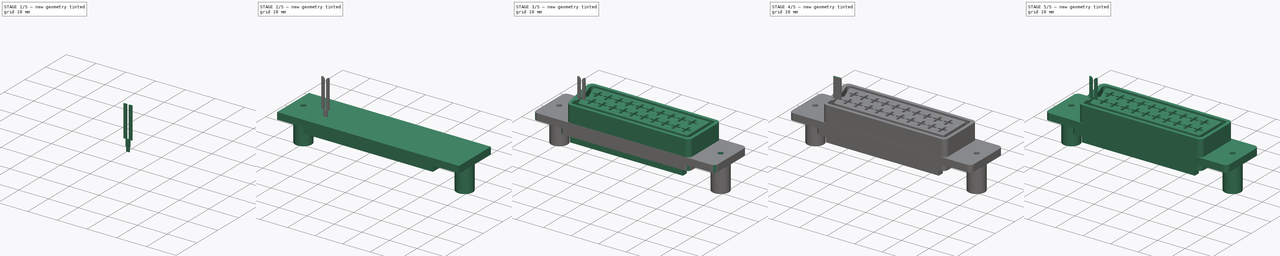
[diagram: build sequence overview — one tinted view per stage of 5, left to right]
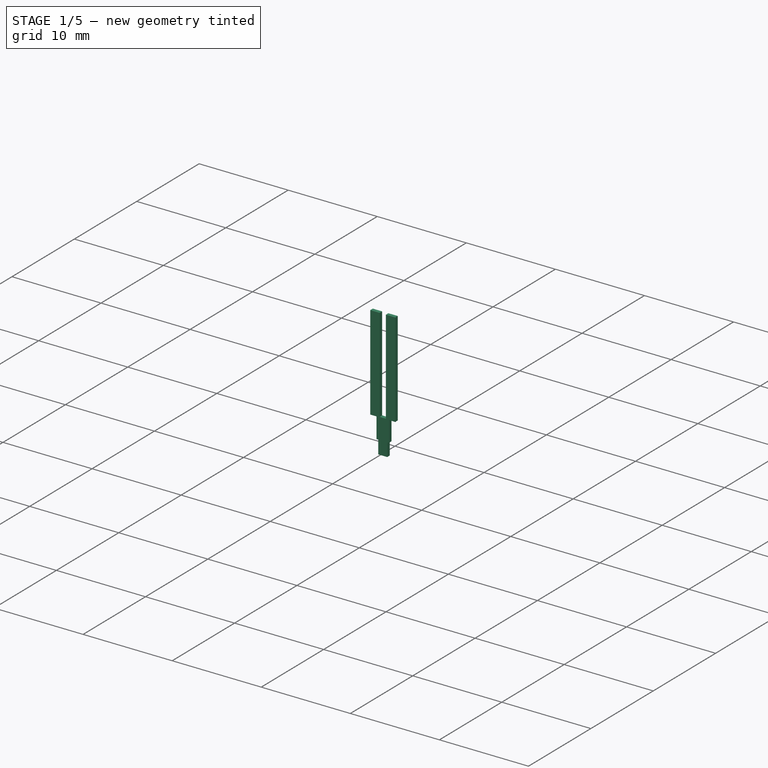
[diagram: stage 1 of 5 — iso view after this stage's code; geometry added in this stage tinted green]
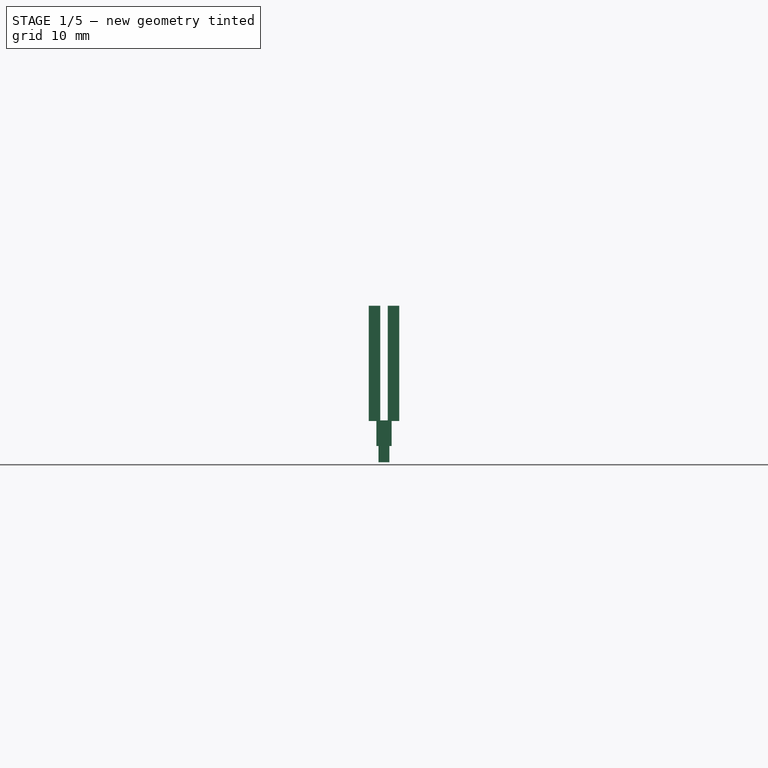
[diagram: stage 1 of 5 — front view after this stage's code; geometry added in this stage tinted green]
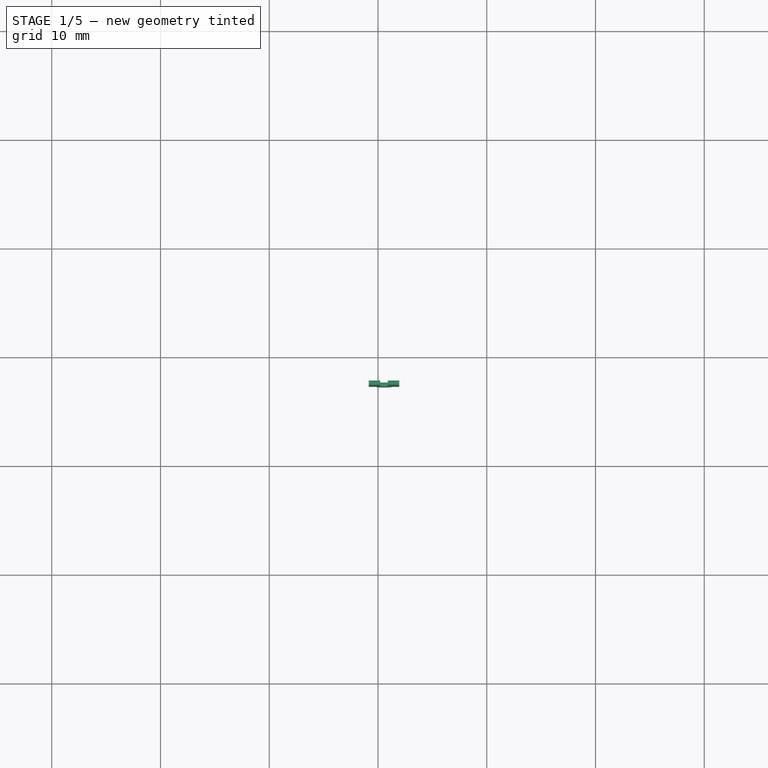
[diagram: stage 1 of 5 — top view after this stage's code; geometry added in this stage tinted green]
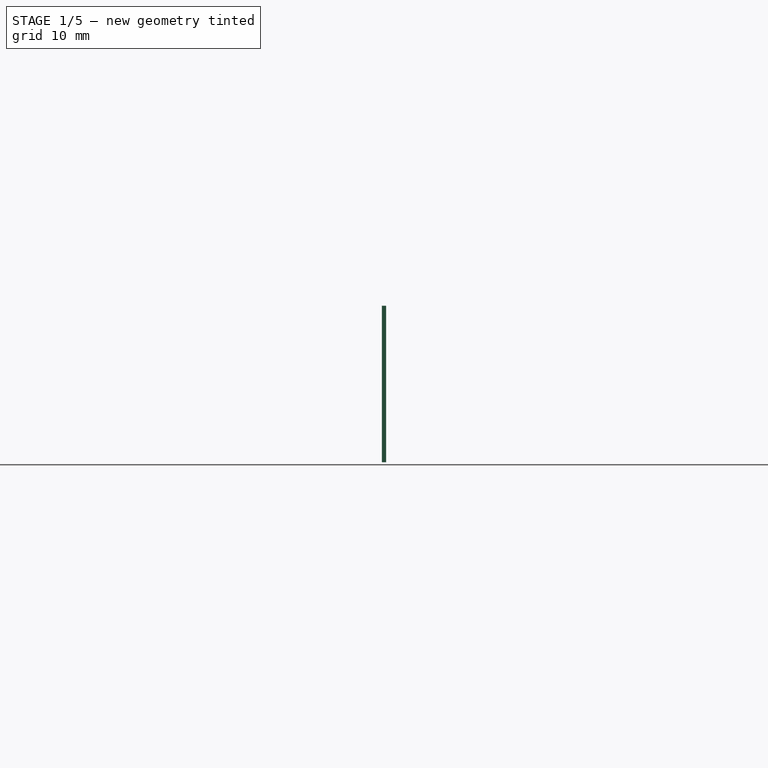
[diagram: stage 1 of 5 — right view after this stage's code; geometry added in this stage tinted green]
FCSTD DOCUMENT  (FreeCAD 0.20R29177 +426 (Git))
Label: TC_1578891_Scart_Vertical
License: All rights reserved
LicenseURL: http://en.wikipedia.org/wiki/All_rights_reserved
objects: Part::Feature×21, PartDesign::SubtractiveBox×13, PartDesign::AdditiveBox×5, PartDesign::Fillet×4, PartDesign::Body×3, PartDesign::AdditiveCylinder×2, PartDesign::SubtractiveCylinder×2, Sketcher::SketchObject×2, PartDesign::Pad×2, PartDesign::LinearPattern×2, App::Part×1
note: 84 computed .brp shape members not serialized (recipe doc carries the construction recipe); baked Part::Feature solids carry a one-line shape summary decoded from their .brp

FEATURE [PartDesign::Body] Body  label="Plastic-body"
  Group = -> [Box,Box001,Cylinder,Cylinder001,Cylinder002,Cylinder003,sSketch001,Pad,sSketch002,Pad001,Box005,Box006,Fillet,Fillet001,Box015,LinearPattern,Box016,LinearPattern001]
  Origin = -> Origin
  Placement = pos=(0,0,7) rot=(0,0,1;0rad)
  Tip = -> LinearPattern001
FEATURE [PartDesign::AdditiveBox] Box017  label="base001"
  AttacherType = Attacher::AttachEngine3D
  AttachmentOffset = pos=(-20.85,-2.74,-1.5) rot=(0,0,1;0rad)
  Height = 14.4
  Length = 2.8
  MapMode = 5
  Placement = pos=(-20.85,-2.74,-1.5) rot=(0,0,1;0rad)
  Support = -> [XY_Plane003]
  Width = 0.4
FEATURE [PartDesign::SubtractiveBox] Box018  label="mid-cut001"
  AttacherType = Attacher::AttachEngine3D
  AttachmentOffset = pos=(-19.8,-2.74,2.35) rot=(0,0,1;0rad)
  BaseFeature = -> Box017
  Height = 10.55
  Length = 0.7
  MapMode = 5
  Placement = pos=(-19.8,-2.74,2.35) rot=(0,0,1;0rad)
  Support = -> [XY_Plane003]
  Width = 0.4
FEATURE [PartDesign::SubtractiveBox] Box019
  AttacherType = Attacher::AttachEngine3D
  AttachmentOffset = pos=(-20.85,-2.74,-1.5) rot=(0,0,1;0rad)
  BaseFeature = -> Box018
  Height = 3.8
  Length = 0.7
  MapMode = 5
  Placement = pos=(-20.85,-2.74,-1.5) rot=(0,0,1;0rad)
  Support = -> [XY_Plane003]
  Width = 0.4
FEATURE [PartDesign::SubtractiveBox] Box020
  AttacherType = Attacher::AttachEngine3D
  AttachmentOffset = pos=(-18.75,-2.74,-1.5) rot=(0,0,1;0rad)
  BaseFeature = -> Box019
  Height = 3.8
  Length = 0.7
  MapMode = 5
  Placement = pos=(-18.75,-2.74,-1.5) rot=(0,0,1;0rad)
  Support = -> [XY_Plane003]
  Width = 0.4
FEATURE [PartDesign::SubtractiveBox] Box021
  AttacherType = Attacher::AttachEngine3D
  AttachmentOffset = pos=(-20.15,-2.74,-1.5) rot=(0,0,1;0rad)
  BaseFeature = -> Box020
  Height = 1.5
  Length = 0.2
  MapMode = 5
  Placement = pos=(-20.15,-2.74,-1.5) rot=(0,0,1;0rad)
  Support = -> [XY_Plane003]
  Width = 0.4
FEATURE [PartDesign::SubtractiveBox] Box022
  AttacherType = Attacher::AttachEngine3D
  AttachmentOffset = pos=(-18.95,-2.74,-1.5) rot=(0,0,1;0rad)
  BaseFeature = -> Box021
  Height = 1.5
  Length = 0.2
  MapMode = 5
  Placement = pos=(-18.95,-2.74,-1.5) rot=(0,0,1;0rad)
  Support = -> [XY_Plane003]
  Width = 0.4
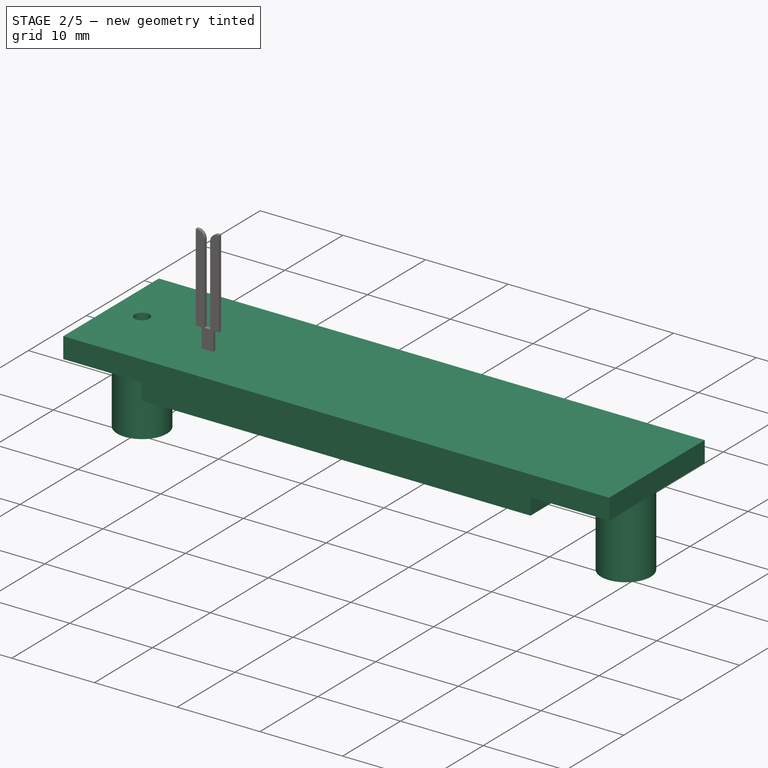
[diagram: stage 2 of 5 — iso view after this stage's code; geometry added in this stage tinted green]
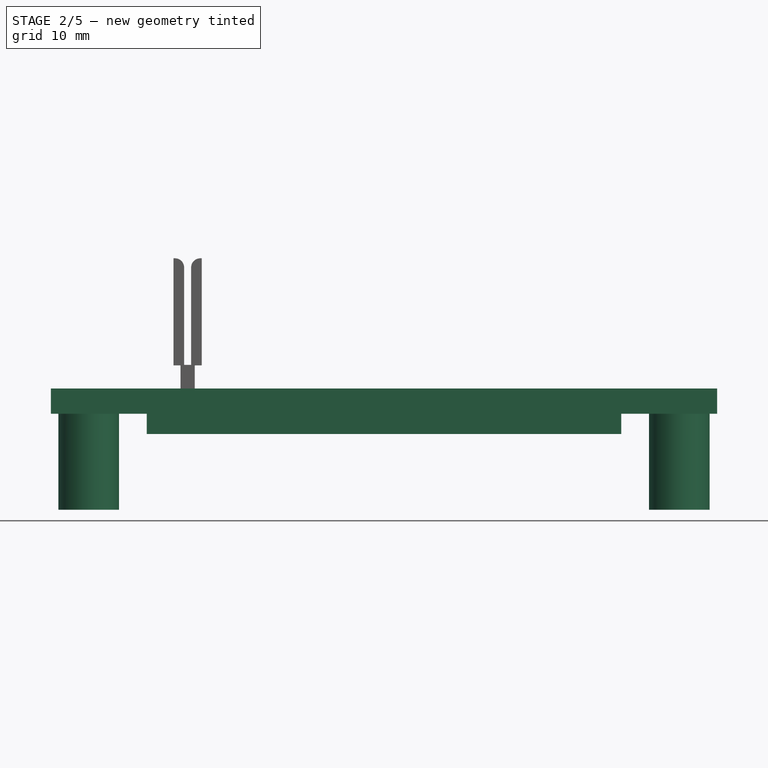
[diagram: stage 2 of 5 — front view after this stage's code; geometry added in this stage tinted green]
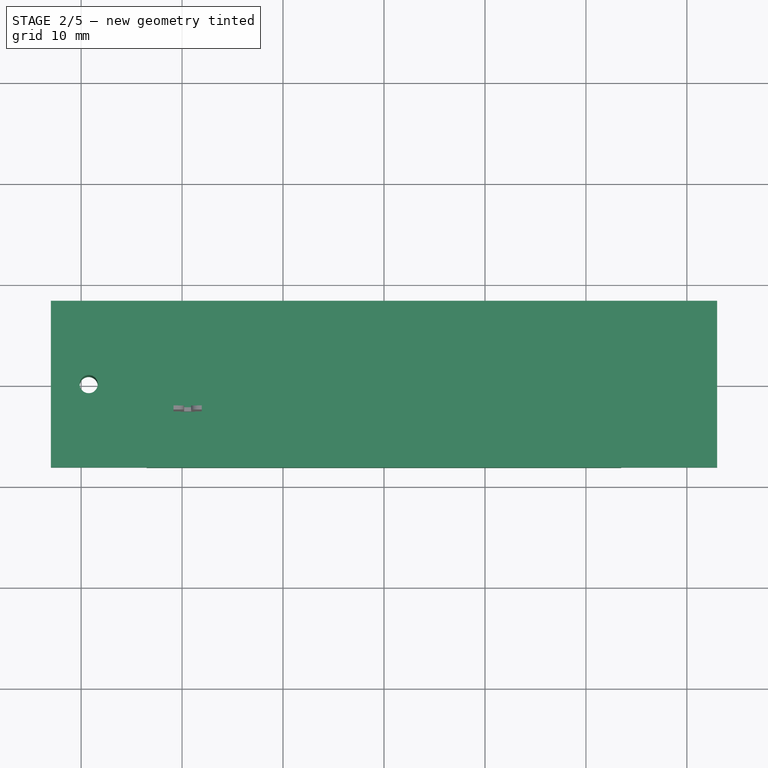
[diagram: stage 2 of 5 — top view after this stage's code; geometry added in this stage tinted green]
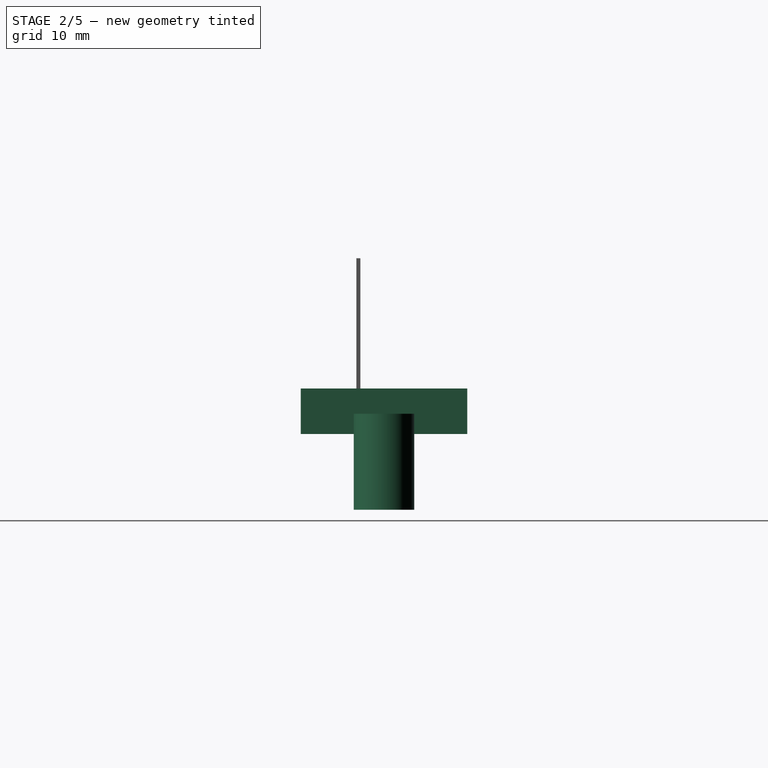
[diagram: stage 2 of 5 — right view after this stage's code; geometry added in this stage tinted green]
FEATURE [PartDesign::AdditiveBox] Box
  AttacherType = Attacher::AttachEngine3D
  AttachmentOffset = pos=(-33,-8.25,-2.5) rot=(0,0,1;0rad)
  Height = 2.5
  Length = 66
  MapMode = 5
  Placement = pos=(-33,-8.25,-2.5) rot=(0,0,1;0rad)
  Support = -> [XY_Plane]
  Width = 16.5
FEATURE [PartDesign::AdditiveBox] Box001
  AttacherType = Attacher::AttachEngine3D
  AttachmentOffset = pos=(-23.5,-8.25,-4.5) rot=(0,0,1;0rad)
  BaseFeature = -> Box
  Height = 2
  Length = 47
  MapMode = 5
  Placement = pos=(-23.5,-8.25,-4.5) rot=(0,0,1;0rad)
  Support = -> [XY_Plane]
  Width = 16.5
FEATURE [PartDesign::AdditiveCylinder] Cylinder
  Angle = 360
  AttacherType = Attacher::AttachEngine3D
  AttachmentOffset = pos=(-29.25,0,-12) rot=(0,0,1;0rad)
  BaseFeature = -> Box001
  FirstAngle = 0
  Height = 9.5
  MapMode = 5
  Placement = pos=(-29.25,0,-12) rot=(0,0,1;0rad)
  Radius = 3
  SecondAngle = 0
  Support = -> [XY_Plane]
FEATURE [PartDesign::AdditiveCylinder] Cylinder001
  Angle = 360
  AttacherType = Attacher::AttachEngine3D
  AttachmentOffset = pos=(29.25,0,-12) rot=(0,0,1;0rad)
  BaseFeature = -> Cylinder
  FirstAngle = 0
  Height = 9.5
  MapMode = 5
  Placement = pos=(29.25,0,-12) rot=(0,0,1;0rad)
  Radius = 3
  SecondAngle = 0
  Support = -> [XY_Plane]
FEATURE [PartDesign::SubtractiveCylinder] Cylinder002
  Angle = 360
  AttacherType = Attacher::AttachEngine3D
  AttachmentOffset = pos=(-29.25,0,-12) rot=(0,0,1;0rad)
  BaseFeature = -> Cylinder001
  FirstAngle = 0
  Height = 12
  MapMode = 5
  Placement = pos=(-29.25,0,-12) rot=(0,0,1;0rad)
  Radius = 0.9
  SecondAngle = 0
  Support = -> [XY_Plane]
FEATURE [PartDesign::Fillet] Fillet003
  Base = -> Box022 [Edge21,Edge37]
  BaseFeature = -> Box022
  Placement = pos=(-18.95,-2.74,-1.5) rot=(0,0,1;0rad)
  Radius = 0.9
  SupportTransform = false
  UseAllEdges = false
FEATURE [PartDesign::Body] Body003  label="pin-top"
  Group = -> [Box017,Box018,Box019,Box020,Box021,Box022,Fillet003]
  Origin = -> Origin003
  Placement = pos=(2.38,5.0875,0) rot=(0,0,1;0rad)
  Tip = -> Fillet003
FEATURE [Part::Feature] Solid  label="pin-top1"
  Placement = pos=(2.38,5.0875,0) rot=(0,0,1;0rad)
  shape: bbox 2.8 x 0.4 x 14.4 mm, 20 faces (baked)
FEATURE [Part::Feature] Solid001  label="pin-top2"
  Placement = pos=(6.18,5.0875,0) rot=(0,0,1;0rad)
  shape: bbox 2.8 x 0.4 x 14.4 mm, 20 faces (baked)
FEATURE [Part::Feature] Solid002  label="pin-top3"
  Placement = pos=(9.98,5.0875,0) rot=(0,0,1;0rad)
  shape: bbox 2.8 x 0.4 x 14.4 mm, 20 faces (baked)
FEATURE [Part::Feature] Solid003  label="pin-top4"
  Placement = pos=(13.78,5.0875,0) rot=(0,0,1;0rad)
  shape: bbox 2.8 x 0.4 x 14.4 mm, 20 faces (baked)
FEATURE [Part::Feature] Solid004  label="pin-top5"
  Placement = pos=(17.58,5.0875,0) rot=(0,0,1;0rad)
  shape: bbox 2.8 x 0.4 x 14.4 mm, 20 faces (baked)
FEATURE [Part::Feature] Solid005  label="pin-top6"
  Placement = pos=(21.38,5.0875,0) rot=(0,0,1;0rad)
  shape: bbox 2.8 x 0.4 x 14.4 mm, 20 faces (baked)
FEATURE [Part::Feature] Solid006  label="pin-top7"
  Placement = pos=(25.18,5.0875,0) rot=(0,0,1;0rad)
  shape: bbox 2.8 x 0.4 x 14.4 mm, 20 faces (baked)
FEATURE [Part::Feature] Solid007  label="pin-top8"
  Placement = pos=(28.98,5.0875,0) rot=(0,0,1;0rad)
  shape: bbox 2.8 x 0.4 x 14.4 mm, 20 faces (baked)
FEATURE [Part::Feature] Solid008  label="pin-top9"
  Placement = pos=(32.78,5.0875,0) rot=(0,0,1;0rad)
  shape: bbox 2.8 x 0.4 x 14.4 mm, 20 faces (baked)
FEATURE [Part::Feature] Solid009  label="pin-top10"
  Placement = pos=(36.58,5.0875,0) rot=(0,0,1;0rad)
  shape: bbox 2.8 x 0.4 x 14.4 mm, 20 faces (baked)
FEATURE [Part::Feature] Solid010  label="pin-bot1"
  shape: bbox 2.8 x 0.4 x 14.4 mm, 20 faces (baked)
FEATURE [Part::Feature] Solid011  label="pin-bot2"
  Placement = pos=(3.8,0,0) rot=(0,0,1;0rad)
  shape: bbox 2.8 x 0.4 x 14.4 mm, 20 faces (baked)
FEATURE [Part::Feature] Solid012  label="pin-bot3"
  Placement = pos=(7.6,0,0) rot=(0,0,1;0rad)
  shape: bbox 2.8 x 0.4 x 14.4 mm, 20 faces (baked)
FEATURE [Part::Feature] Solid013  label="pin-bot4"
  Placement = pos=(11.4,0,0) rot=(0,0,1;0rad)
  shape: bbox 2.8 x 0.4 x 14.4 mm, 20 faces (baked)
FEATURE [Part::Feature] Solid014  label="pin-bot5"
  Placement = pos=(15.2,0,0) rot=(0,0,1;0rad)
  shape: bbox 2.8 x 0.4 x 14.4 mm, 20 faces (baked)
FEATURE [Part::Feature] Solid015  label="pin-bot6"
  Placement = pos=(19,0,0) rot=(0,0,1;0rad)
  shape: bbox 2.8 x 0.4 x 14.4 mm, 20 faces (baked)
FEATURE [Part::Feature] Solid016  label="pin-bot7"
  Placement = pos=(22.8,0,0) rot=(0,0,1;0rad)
  shape: bbox 2.8 x 0.4 x 14.4 mm, 20 faces (baked)
FEATURE [Part::Feature] Solid017  label="pin-bot8"
  Placement = pos=(26.6,0,0) rot=(0,0,1;0rad)
  shape: bbox 2.8 x 0.4 x 14.4 mm, 20 faces (baked)
FEATURE [Part::Feature] Solid018  label="pin-bot9"
  Placement = pos=(30.4,0,0) rot=(0,0,1;0rad)
  shape: bbox 2.8 x 0.4 x 14.4 mm, 20 faces (baked)
FEATURE [Part::Feature] Solid019  label="pin-bot10"
  Placement = pos=(34.2,0,0) rot=(0,0,1;0rad)
  shape: bbox 2.8 x 0.4 x 14.4 mm, 20 faces (baked)
FEATURE [Part::Feature] Solid020  label="pin-bot11"
  Placement = pos=(38,0,0) rot=(0,0,1;0rad)
  shape: bbox 2.8 x 0.4 x 14.4 mm, 20 faces (baked)
FEATURE [App::Part] Part  label="TC_1578891_scart"
  Group = -> [Body,Body003,Body002,Solid,Solid001,Solid002,Solid003,Solid004,Solid005,Solid006,Solid007,Solid008,Solid009,Solid010,Solid011,Solid012,Solid013,Solid014,Solid015,Solid016,Solid017,Solid018,Solid019,Solid020]
  Origin = -> Origin004
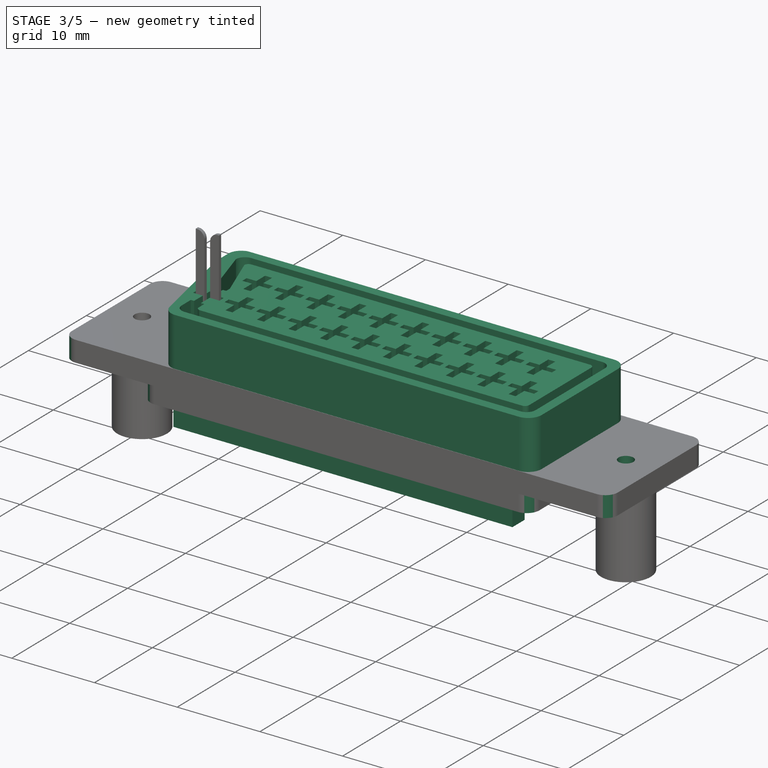
[diagram: stage 3 of 5 — iso view after this stage's code; geometry added in this stage tinted green]
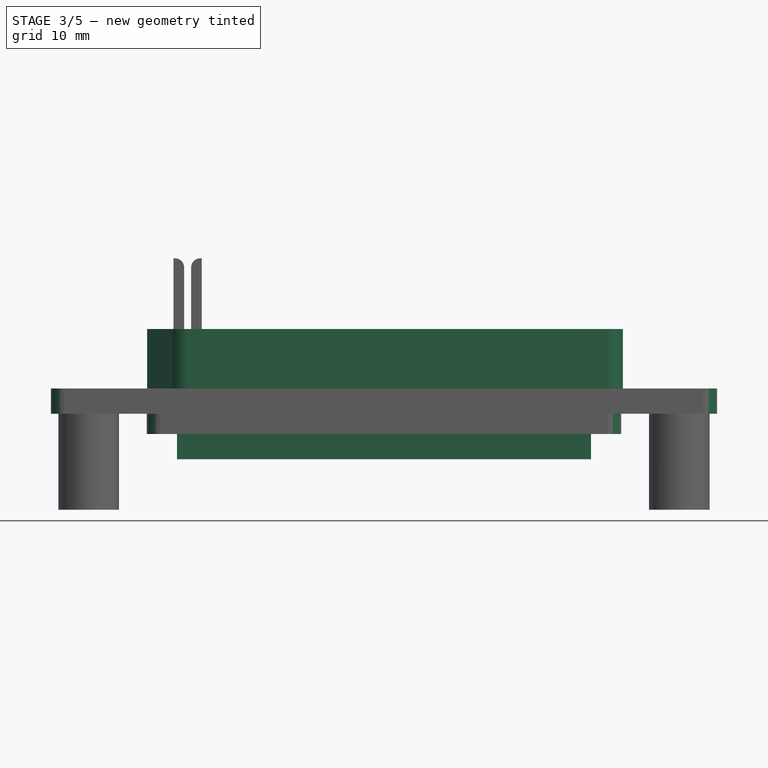
[diagram: stage 3 of 5 — front view after this stage's code; geometry added in this stage tinted green]
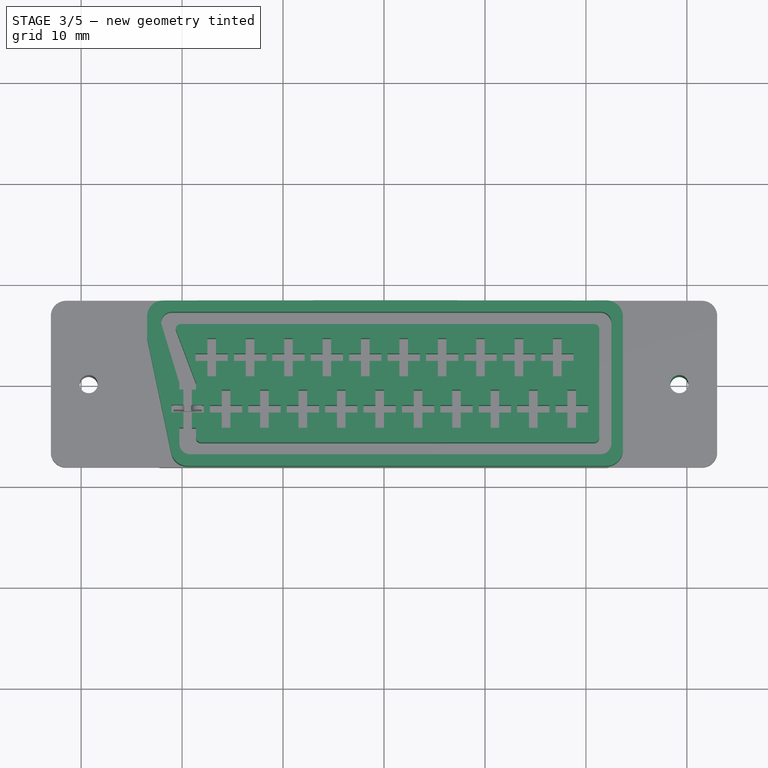
[diagram: stage 3 of 5 — top view after this stage's code; geometry added in this stage tinted green]
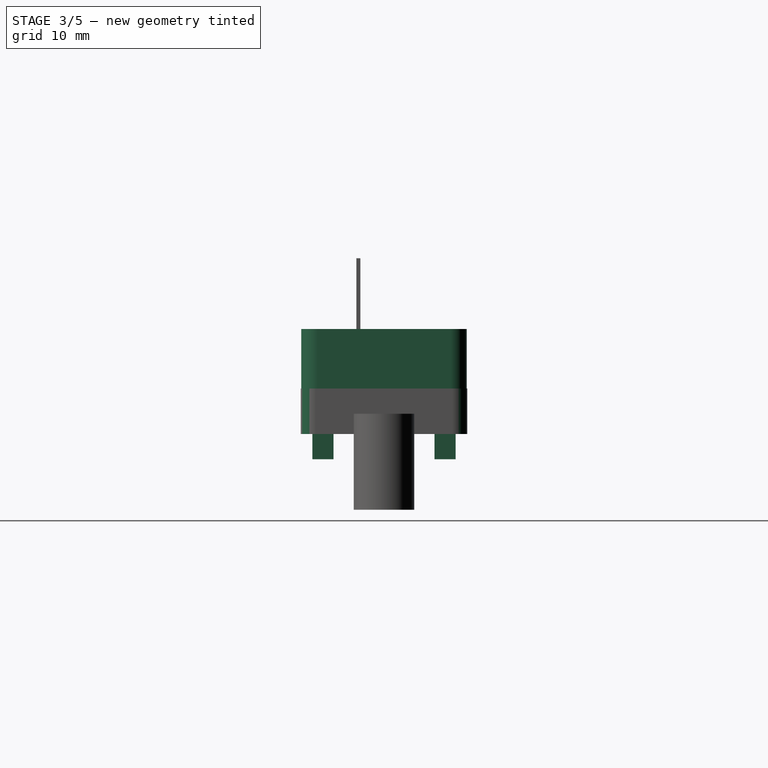
[diagram: stage 3 of 5 — right view after this stage's code; geometry added in this stage tinted green]
FEATURE [PartDesign::SubtractiveCylinder] Cylinder003
  Angle = 360
  AttacherType = Attacher::AttachEngine3D
  AttachmentOffset = pos=(29.25,0,-12) rot=(0,0,1;0rad)
  BaseFeature = -> Cylinder002
  FirstAngle = 0
  Height = 12
  MapMode = 5
  Placement = pos=(29.25,0,-12) rot=(0,0,1;0rad)
  Radius = 0.9
  SecondAngle = 0
  Support = -> [XY_Plane]
FEATURE [Sketcher::SketchObject] sSketch001  label="sleeve"
  FullyConstrained = false
  Placement = pos=(-33,8.25,0) rot=(0,0,1;0rad)
  sketch-geometry (39):
    g0: LineSegment StartX=13.1251 StartY=-12.6632 StartZ=0 EndX=13.1251 EndY=-11.1474 EndZ=0
    g1: LineSegment StartX=13.4796 StartY=-16.4502 StartZ=0 EndX=55.0418 EndY=-16.4502 EndZ=0
    g2: LineSegment StartX=11.9519 StartY=-11.1474 StartZ=0 EndX=11.9519 EndY=-10.4019 EndZ=0
    g3: ArcOfCircle CenterX=54.441 CenterY=-14.2286 CenterZ=0 NormalX=0 NormalY=0 NormalZ=1 AngleXU=0 Radius=1.07875 StartAngle=4.69079 EndAngle=5.4939
    g4: ArcOfCircle CenterX=54.4492 CenterY=-14.2369 CenterZ=0 NormalX=0 NormalY=0 NormalZ=1 AngleXU=0 Radius=1.06705 StartAngle=5.4939 EndAngle=6.30489
    g5: LineSegment StartX=12.7307 StartY=-8.25 StartZ=0 EndX=10.9147 EndY=-2.28623 EndZ=0
    g6: ArcOfCircle CenterX=13.7973 CenterY=-14.237 CenterZ=0 NormalX=0 NormalY=0 NormalZ=1 AngleXU=0 Radius=1.06683 StartAngle=3.11979 EndAngle=3.93094
    g7: ArcOfCircle CenterX=13.8059 CenterY=-14.2284 CenterZ=0 NormalX=0 NormalY=0 NormalZ=1 AngleXU=0 Radius=1.07898 StartAngle=3.93094 EndAngle=4.7339
    g8: LineSegment StartX=56.6643 StartY=-1.665 StartZ=0 EndX=56.6643 EndY=-14.835 EndZ=0
    g9: ArcOfCircle CenterX=11.9898 CenterY=-2.27137 CenterZ=0 NormalX=0 NormalY=0 NormalZ=1 AngleXU=0 Radius=1.07875 StartAngle=1.5492 EndAngle=2.35231
    g10: ArcOfCircle CenterX=11.9815 CenterY=-2.26307 CenterZ=0 NormalX=0 NormalY=0 NormalZ=1 AngleXU=0 Radius=1.06706 StartAngle=2.35231 EndAngle=3.1633
    g11: LineSegment StartX=9.53555 StartY=-1.665 StartZ=0 EndX=9.53555 EndY=-3.77717 EndZ=0
    g12: LineSegment StartX=11.9319 StartY=-15.158 StartZ=0 EndX=11.9063 EndY=-15.0617 EndZ=0
    g13: LineSegment StartX=11.9063 StartY=-15.0617 StartZ=0 EndX=11.8909 EndY=-15.0037 EndZ=0
    g14: LineSegment StartX=13.8291 StartY=-15.3071 StartZ=0 EndX=54.4177 EndY=-15.3071 EndZ=0
    g15: LineSegment StartX=13.1251 StartY=-10.4019 StartZ=0 EndX=13.1251 EndY=-8.88613 EndZ=0
    g16: LineSegment StartX=12.7307 StartY=-8.88613 StartZ=0 EndX=12.7307 EndY=-8.25 EndZ=0
    g17: ArcOfCircle CenterX=54.4495 CenterY=-2.26298 CenterZ=0 NormalX=0 NormalY=0 NormalZ=1 AngleXU=0 Radius=1.06683 StartAngle=6.26139 EndAngle=7.07253
    g18: ArcOfCircle CenterX=54.4409 CenterY=-2.27161 CenterZ=0 NormalX=0 NormalY=0 NormalZ=1 AngleXU=0 Radius=1.07899 StartAngle=0.789345 EndAngle=1.5923
    g19: LineSegment StartX=12.7307 StartY=-8.88613 StartZ=0 EndX=13.1251 EndY=-8.88613 EndZ=0
    g20: LineSegment StartX=55.516 StartY=-2.28623 StartZ=0 EndX=55.516 EndY=-14.2138 EndZ=0
    g21: LineSegment StartX=11.9519 StartY=-10.4019 StartZ=0 EndX=13.1251 EndY=-10.4019 EndZ=0
    g22: LineSegment StartX=11.9519 StartY=-11.1474 StartZ=0 EndX=13.1251 EndY=-11.1474 EndZ=0
    g23: LineSegment StartX=13.1251 StartY=-12.6632 StartZ=0 EndX=12.7307 EndY=-12.6632 EndZ=0
    g24: LineSegment StartX=12.7307 StartY=-14.2138 StartZ=0 EndX=12.7307 EndY=-12.6632 EndZ=0
    g25: LineSegment StartX=12.0131 StartY=-1.19287 StartZ=0 EndX=54.4177 EndY=-1.19287 EndZ=0
    g26: ArcOfCircle CenterX=55.0644 CenterY=-1.665 CenterZ=0 NormalX=0 NormalY=0 NormalZ=1 AngleXU=0 Radius=1.59995 StartAngle=0 EndAngle=1.57341
    g27: ArcOfCircle CenterX=52.7338 CenterY=891.163 CenterZ=0 NormalX=0 NormalY=0 NormalZ=-1 AngleXU=0 Radius=891.231 StartAngle=4.70978 EndAngle=4.71338
    g28: ArcOfCircle CenterX=34.2616 CenterY=-10844.8 CenterZ=0 NormalX=0 NormalY=0 NormalZ=1 AngleXU=0 Radius=10844.7 StartAngle=1.56917 EndAngle=1.5701
    g29: ArcOfCircle CenterX=-3.20547 CenterY=-64582.9 CenterZ=0 NormalX=0 NormalY=0 NormalZ=1 AngleXU=0 Radius=64582.9 StartAngle=1.5701 EndAngle=1.57025
    g30: ArcOfCircle CenterX=19.9746 CenterY=9909.72 CenterZ=0 NormalX=0 NormalY=0 NormalZ=-1 AngleXU=0 Radius=9909.77 StartAngle=4.7112 EndAngle=4.71225
    g31: ArcOfCircle CenterX=21.6457 CenterY=-2421.79 CenterZ=0 NormalX=0 NormalY=0 NormalZ=1 AngleXU=0 Radius=2421.73 StartAngle=1.57093 EndAngle=1.57526
    g32: ArcOfCircle CenterX=11.1245 CenterY=-1.64835 CenterZ=0 NormalX=0 NormalY=0 NormalZ=1 AngleXU=0 Radius=1.59282 StartAngle=1.74936 EndAngle=2.45072
    g33: ArcOfCircle CenterX=11.1121 CenterY=-1.63813 CenterZ=0 NormalX=0 NormalY=0 NormalZ=1 AngleXU=0 Radius=1.57678 StartAngle=2.45072 EndAngle=3.15864
    g34: ArcOfCircle CenterX=13.4915 CenterY=-14.8579 CenterZ=0 NormalX=0 NormalY=0 NormalZ=1 AngleXU=0 Radius=1.58816 StartAngle=3.3317 EndAngle=4.01832
    g35: ArcOfCircle CenterX=13.5033 CenterY=-14.8437 CenterZ=0 NormalX=0 NormalY=0 NormalZ=1 AngleXU=0 Radius=1.60666 StartAngle=4.01832 EndAngle=4.69763
    g36: ArcOfCircle CenterX=55.0427 CenterY=-14.8247 CenterZ=0 NormalX=0 NormalY=0 NormalZ=1 AngleXU=0 Radius=1.62551 StartAngle=4.71181 EndAngle=5.49432
    g37: ArcOfCircle CenterX=55.052 CenterY=-14.834 CenterZ=0 NormalX=0 NormalY=0 NormalZ=1 AngleXU=0 Radius=1.61231 StartAngle=5.49432 EndAngle=6.28259
    g38: LineSegment StartX=9.53555 StartY=-3.77717 StartZ=0 EndX=11.8909 EndY=-15.0037 EndZ=0
FEATURE [Sketcher::SketchObject] sSketch002  label="lump-middle"
  FullyConstrained = false
  Placement = pos=(-33,8.25,0) rot=(0,0,1;0rad)
  sketch-geometry (262):
    g0: LineSegment StartX=47.3634 StartY=-10.4209 StartZ=0 EndX=47.3634 EndY=-8.90511 EndZ=0
    g1: LineSegment StartX=15.5065 StartY=-7.5732 StartZ=0 EndX=15.5065 EndY=-6.05741 EndZ=0
    g2: LineSegment StartX=45.9405 StartY=-5.31194 StartZ=0 EndX=45.9405 EndY=-3.79615 EndZ=0
    g3: LineSegment StartX=21.5823 StartY=-10.4209 StartZ=0 EndX=21.5823 EndY=-8.90511 EndZ=0
    g4: LineSegment StartX=32.1464 StartY=-10.4209 StartZ=0 EndX=32.1464 EndY=-8.90511 EndZ=0
    g5: LineSegment StartX=38.5816 StartY=-11.1664 StartZ=0 EndX=38.5816 EndY=-10.4209 EndZ=0
    g6: LineSegment StartX=24.5379 StartY=-12.6822 StartZ=0 EndX=24.5379 EndY=-11.1664 EndZ=0
    g7: LineSegment StartX=30.9731 StartY=-10.4209 StartZ=0 EndX=32.1464 EndY=-10.4209 EndZ=0
    g8: LineSegment StartX=34.7774 StartY=-11.1664 StartZ=0 EndX=34.7774 EndY=-10.4209 EndZ=0
    g9: LineSegment StartX=30.7235 StartY=-5.31194 StartZ=0 EndX=30.7235 EndY=-3.79615 EndZ=0
    g10: LineSegment StartX=28.3421 StartY=-12.6822 StartZ=0 EndX=29.1908 EndY=-12.6822 EndZ=0
    g11: LineSegment StartX=46.7892 StartY=-7.5732 StartZ=0 EndX=46.7892 EndY=-6.05741 EndZ=0
    g12: LineSegment StartX=14.3782 StartY=-13.6364 StartZ=0 EndX=14.3782 EndY=-12.6822 EndZ=0
    g13: LineSegment StartX=23.115 StartY=-7.5732 StartZ=0 EndX=23.9637 EndY=-7.5732 EndZ=0
    g14: LineSegment StartX=23.3646 StartY=-10.4209 StartZ=0 EndX=24.5379 EndY=-10.4209 EndZ=0
    g15: LineSegment StartX=42.985 StartY=-7.5732 StartZ=0 EndX=42.985 EndY=-6.05741 EndZ=0
    g16: LineSegment StartX=13.9738 StartY=-10.4209 StartZ=0 EndX=13.9738 EndY=-8.90511 EndZ=0
    g17: LineSegment StartX=27.1689 StartY=-10.4209 StartZ=0 EndX=28.3421 EndY=-10.4209 EndZ=0
    g18: LineSegment StartX=18.1375 StartY=-6.05741 StartZ=0 EndX=18.1375 EndY=-5.31194 EndZ=0
    g19: LineSegment StartX=29.1908 StartY=-12.6822 StartZ=0 EndX=29.1908 EndY=-11.1664 EndZ=0
    g20: LineSegment StartX=49.9944 StartY=-10.4209 StartZ=0 EndX=51.1676 EndY=-10.4209 EndZ=0
    g21: LineSegment StartX=30.7235 StartY=-7.5732 StartZ=0 EndX=31.5722 EndY=-7.5732 EndZ=0
    g22: LineSegment StartX=42.3859 StartY=-11.1664 StartZ=0 EndX=42.3859 EndY=-10.4209 EndZ=0
    g23: LineSegment StartX=40.963 StartY=-6.05741 StartZ=0 EndX=42.1363 EndY=-6.05741 EndZ=0
    g24: LineSegment StartX=46.7892 StartY=-5.31194 StartZ=0 EndX=47.9625 EndY=-5.31194 EndZ=0
    g25: LineSegment StartX=30.9731 StartY=-11.1664 StartZ=0 EndX=32.1464 EndY=-11.1664 EndZ=0
    g26: LineSegment StartX=34.1683 StartY=-11.1664 StartZ=0 EndX=34.1683 EndY=-10.4209 EndZ=0
    g27: LineSegment StartX=21.5823 StartY=-11.1664 StartZ=0 EndX=22.7556 EndY=-11.1664 EndZ=0
    g28: LineSegment StartX=32.1464 StartY=-12.6822 StartZ=0 EndX=32.9951 EndY=-12.6822 EndZ=0
    g29: LineSegment StartX=19.3108 StartY=-3.79615 StartZ=0 EndX=20.1595 EndY=-3.79615 EndZ=0
    g30: LineSegment StartX=21.5823 StartY=-12.6822 StartZ=0 EndX=21.5823 EndY=-11.1664 EndZ=0
    g31: LineSegment StartX=25.746 StartY=-5.31194 StartZ=0 EndX=26.9193 EndY=-5.31194 EndZ=0
    g32: LineSegment StartX=15.1471 StartY=-11.1664 StartZ=0 EndX=15.1471 EndY=-10.4209 EndZ=0
    g33: LineSegment StartX=27.1689 StartY=-11.1664 StartZ=0 EndX=28.3421 EndY=-11.1664 EndZ=0
    g34: LineSegment StartX=38.5816 StartY=-11.1664 StartZ=0 EndX=39.7549 EndY=-11.1664 EndZ=0
    g35: LineSegment StartX=21.9418 StartY=-6.05741 StartZ=0 EndX=21.9418 EndY=-5.31194 EndZ=0
    g36: LineSegment StartX=16.3552 StartY=-5.31194 StartZ=0 EndX=17.5285 EndY=-5.31194 EndZ=0
    g37: LineSegment StartX=30.3641 StartY=-11.1664 StartZ=0 EndX=30.3641 EndY=-10.4209 EndZ=0
    g38: LineSegment StartX=39.7549 StartY=-10.4209 StartZ=0 EndX=39.7549 EndY=-8.90511 EndZ=0
    g39: LineSegment StartX=17.7781 StartY=-12.6822 StartZ=0 EndX=17.7781 EndY=-11.1664 EndZ=0
    g40: LineSegment StartX=20.1595 StartY=-5.31194 StartZ=0 EndX=20.1595 EndY=-3.79615 EndZ=0
    g41: LineSegment StartX=14.8775 StartY=-14.1334 StartZ=0 EndX=53.8186 EndY=-14.1334 EndZ=0
    g42: LineSegment StartX=37.9726 StartY=-11.1664 StartZ=0 EndX=37.9726 EndY=-10.4209 EndZ=0
    g43: LineSegment StartX=37.1588 StartY=-6.05741 StartZ=0 EndX=38.332 EndY=-6.05741 EndZ=0
    g44: LineSegment StartX=21.3327 StartY=-6.05741 StartZ=0 EndX=21.3327 EndY=-5.31194 EndZ=0
    g45: LineSegment StartX=14.3782 StartY=-8.26898 StartZ=0 EndX=12.3688 EndY=-2.90158 EndZ=0
    g46: LineSegment StartX=29.5503 StartY=-6.05741 StartZ=0 EndX=29.5503 EndY=-5.31194 EndZ=0
    g47: LineSegment StartX=42.3859 StartY=-10.4209 StartZ=0 EndX=43.5591 EndY=-10.4209 EndZ=0
    g48: LineSegment StartX=14.3782 StartY=-8.90511 StartZ=0 EndX=13.9738 EndY=-8.90511 EndZ=0
    g49: LineSegment StartX=49.7448 StartY=-5.31194 StartZ=0 EndX=49.7448 EndY=-3.79615 EndZ=0
    g50: LineSegment StartX=48.5715 StartY=-5.31194 StartZ=0 EndX=49.7448 EndY=-5.31194 EndZ=0
    g51: LineSegment StartX=49.7448 StartY=-3.79615 StartZ=0 EndX=50.5935 EndY=-3.79615 EndZ=0
    g52: LineSegment StartX=39.7549 StartY=-12.6822 StartZ=0 EndX=40.6036 EndY=-12.6822 EndZ=0
    g53: LineSegment StartX=48.2121 StartY=-11.1664 StartZ=0 EndX=49.3853 EndY=-11.1664 EndZ=0
    g54: LineSegment StartX=51.7667 StartY=-6.05741 StartZ=0 EndX=51.7667 EndY=-5.31194 EndZ=0
    g55: ArcOfCircle CenterX=14.8724 CenterY=-13.6373 CenterZ=0 NormalX=0 NormalY=0 NormalZ=1 AngleXU=0 Radius=0.494146 StartAngle=3.13978 EndAngle=3.93123
    g56: ArcOfCircle CenterX=14.8771 CenterY=-13.6325 CenterZ=0 NormalX=0 NormalY=0 NormalZ=1 AngleXU=0 Radius=0.500828 StartAngle=3.93123 EndAngle=4.71318
    g57: LineSegment StartX=49.3853 StartY=-11.1664 StartZ=0 EndX=49.3853 EndY=-10.4209 EndZ=0
    g58: LineSegment StartX=14.3782 StartY=-2.4046 StartZ=0 EndX=53.8186 EndY=-2.4046 EndZ=0
    g59: LineSegment StartX=32.1464 StartY=-8.90511 StartZ=0 EndX=32.9951 EndY=-8.90511 EndZ=0
    g60: LineSegment StartX=27.768 StartY=-7.5732 StartZ=0 EndX=27.768 EndY=-6.05741 EndZ=0
    g61: LineSegment StartX=38.332 StartY=-7.5732 StartZ=0 EndX=38.332 EndY=-6.05741 EndZ=0
    g62: LineSegment StartX=31.5722 StartY=-5.31194 StartZ=0 EndX=31.5722 EndY=-3.79615 EndZ=0
    g63: LineSegment StartX=51.1676 StartY=-10.4209 StartZ=0 EndX=51.1676 EndY=-8.90511 EndZ=0
    g64: LineSegment StartX=44.1582 StartY=-6.05741 StartZ=0 EndX=44.1582 EndY=-5.31194 EndZ=0
    g65: LineSegment StartX=52.0163 StartY=-12.6822 StartZ=0 EndX=52.0163 EndY=-11.1664 EndZ=0
    g66: LineSegment StartX=53.1896 StartY=-11.1664 StartZ=0 EndX=53.1896 EndY=-10.4209 EndZ=0
    g67: LineSegment StartX=51.1676 StartY=-8.90511 StartZ=0 EndX=52.0163 EndY=-8.90511 EndZ=0
    g68: LineSegment StartX=52.0163 StartY=-10.4209 StartZ=0 EndX=53.1896 EndY=-10.4209 EndZ=0
    g69: LineSegment StartX=51.1676 StartY=-12.6822 StartZ=0 EndX=51.1676 EndY=-11.1664 EndZ=0
    g70: LineSegment StartX=51.1676 StartY=-12.6822 StartZ=0 EndX=52.0163 EndY=-12.6822 EndZ=0
    g71: LineSegment StartX=52.0163 StartY=-10.4209 StartZ=0 EndX=52.0163 EndY=-8.90511 EndZ=0
    g72: LineSegment StartX=49.9944 StartY=-11.1664 StartZ=0 EndX=51.1676 EndY=-11.1664 EndZ=0
    g73: LineSegment StartX=52.0163 StartY=-11.1664 StartZ=0 EndX=53.1896 EndY=-11.1664 EndZ=0
    g74: LineSegment StartX=25.3866 StartY=-10.4209 StartZ=0 EndX=25.3866 EndY=-8.90511 EndZ=0
    g75: LineSegment StartX=49.9944 StartY=-11.1664 StartZ=0 EndX=49.9944 EndY=-10.4209 EndZ=0
    g76: LineSegment StartX=36.7993 StartY=-10.4209 StartZ=0 EndX=36.7993 EndY=-8.90511 EndZ=0
    g77: LineSegment StartX=36.7993 StartY=-11.1664 StartZ=0 EndX=37.9726 EndY=-11.1664 EndZ=0
    g78: LineSegment StartX=23.115 StartY=-3.79615 StartZ=0 EndX=23.9637 EndY=-3.79615 EndZ=0
    g79: LineSegment StartX=45.5811 StartY=-11.1664 StartZ=0 EndX=45.5811 EndY=-10.4209 EndZ=0
    g80: LineSegment StartX=36.7993 StartY=-10.4209 StartZ=0 EndX=37.9726 EndY=-10.4209 EndZ=0
    g81: LineSegment StartX=35.9506 StartY=-12.6822 StartZ=0 EndX=35.9506 EndY=-11.1664 EndZ=0
    g82: LineSegment StartX=35.3765 StartY=-5.31194 StartZ=0 EndX=35.3765 EndY=-3.79615 EndZ=0
    g83: LineSegment StartX=35.9506 StartY=-12.6822 StartZ=0 EndX=36.7993 EndY=-12.6822 EndZ=0
    g84: LineSegment StartX=48.5715 StartY=-6.05741 StartZ=0 EndX=48.5715 EndY=-5.31194 EndZ=0
    g85: LineSegment StartX=36.7993 StartY=-12.6822 StartZ=0 EndX=36.7993 EndY=-11.1664 EndZ=0
    g86: LineSegment StartX=34.7774 StartY=-11.1664 StartZ=0 EndX=35.9506 EndY=-11.1664 EndZ=0
    g87: LineSegment StartX=35.9506 StartY=-10.4209 StartZ=0 EndX=35.9506 EndY=-8.90511 EndZ=0
    g88: LineSegment StartX=35.9506 StartY=-8.90511 StartZ=0 EndX=36.7993 EndY=-8.90511 EndZ=0
    g89: LineSegment StartX=34.7774 StartY=-10.4209 StartZ=0 EndX=35.9506 EndY=-10.4209 EndZ=0
    g90: LineSegment StartX=27.1689 StartY=-11.1664 StartZ=0 EndX=27.1689 EndY=-10.4209 EndZ=0
    g91: LineSegment StartX=21.5823 StartY=-10.4209 StartZ=0 EndX=22.7556 EndY=-10.4209 EndZ=0
    g92: LineSegment StartX=20.7336 StartY=-10.4209 StartZ=0 EndX=20.7336 EndY=-8.90511 EndZ=0
    g93: LineSegment StartX=14.3782 StartY=-2.4046 StartZ=0 EndX=12.868 EndY=-2.4046 EndZ=0
    g94: LineSegment StartX=20.7336 StartY=-12.6822 StartZ=0 EndX=20.7336 EndY=-11.1664 EndZ=0
    g95: LineSegment StartX=25.3866 StartY=-11.1664 StartZ=0 EndX=26.5598 EndY=-11.1664 EndZ=0
    g96: LineSegment StartX=20.7336 StartY=-8.90511 StartZ=0 EndX=21.5823 EndY=-8.90511 EndZ=0
    g97: LineSegment StartX=20.7336 StartY=-12.6822 StartZ=0 EndX=21.5823 EndY=-12.6822 EndZ=0
    g98: LineSegment StartX=19.5604 StartY=-11.1664 StartZ=0 EndX=19.5604 EndY=-10.4209 EndZ=0
    g99: LineSegment StartX=22.7556 StartY=-11.1664 StartZ=0 EndX=22.7556 EndY=-10.4209 EndZ=0
    g100: LineSegment StartX=19.5604 StartY=-11.1664 StartZ=0 EndX=20.7336 EndY=-11.1664 EndZ=0
    g101: LineSegment StartX=41.7768 StartY=-11.1664 StartZ=0 EndX=41.7768 EndY=-10.4209 EndZ=0
    g102: LineSegment StartX=19.5604 StartY=-10.4209 StartZ=0 EndX=20.7336 EndY=-10.4209 EndZ=0
    g103: LineSegment StartX=24.5379 StartY=-12.6822 StartZ=0 EndX=25.3866 EndY=-12.6822 EndZ=0
    g104: LineSegment StartX=26.5598 StartY=-11.1664 StartZ=0 EndX=26.5598 EndY=-10.4209 EndZ=0
    g105: LineSegment StartX=24.5379 StartY=-10.4209 StartZ=0 EndX=24.5379 EndY=-8.90511 EndZ=0
    g106: LineSegment StartX=23.3646 StartY=-11.1664 StartZ=0 EndX=24.5379 EndY=-11.1664 EndZ=0
    g107: LineSegment StartX=25.3866 StartY=-12.6822 StartZ=0 EndX=25.3866 EndY=-11.1664 EndZ=0
    g108: LineSegment StartX=24.5379 StartY=-8.90511 StartZ=0 EndX=25.3866 EndY=-8.90511 EndZ=0
    g109: LineSegment StartX=45.9405 StartY=-3.79615 StartZ=0 EndX=46.7892 EndY=-3.79615 EndZ=0
    g110: LineSegment StartX=23.3646 StartY=-11.1664 StartZ=0 EndX=23.3646 EndY=-10.4209 EndZ=0
    g111: LineSegment StartX=25.3866 StartY=-10.4209 StartZ=0 EndX=26.5598 EndY=-10.4209 EndZ=0
    g112: LineSegment StartX=44.7673 StartY=-5.31194 StartZ=0 EndX=45.9405 EndY=-5.31194 EndZ=0
    g113: LineSegment StartX=17.7781 StartY=-10.4209 StartZ=0 EndX=17.7781 EndY=-8.90511 EndZ=0
    g114: LineSegment StartX=18.9513 StartY=-11.1664 StartZ=0 EndX=18.9513 EndY=-10.4209 EndZ=0
    g115: LineSegment StartX=16.9294 StartY=-12.6822 StartZ=0 EndX=16.9294 EndY=-11.1664 EndZ=0
    g116: LineSegment StartX=16.9294 StartY=-8.90511 StartZ=0 EndX=17.7781 EndY=-8.90511 EndZ=0
    g117: LineSegment StartX=16.9294 StartY=-10.4209 StartZ=0 EndX=16.9294 EndY=-8.90511 EndZ=0
    g118: LineSegment StartX=48.2121 StartY=-10.4209 StartZ=0 EndX=48.2121 EndY=-8.90511 EndZ=0
    g119: LineSegment StartX=15.7561 StartY=-11.1664 StartZ=0 EndX=15.7561 EndY=-10.4209 EndZ=0
    g120: LineSegment StartX=15.7561 StartY=-10.4209 StartZ=0 EndX=16.9294 EndY=-10.4209 EndZ=0
    g121: LineSegment StartX=17.7781 StartY=-10.4209 StartZ=0 EndX=18.9513 EndY=-10.4209 EndZ=0
    g122: LineSegment StartX=17.7781 StartY=-11.1664 StartZ=0 EndX=18.9513 EndY=-11.1664 EndZ=0
    g123: LineSegment StartX=16.9294 StartY=-12.6822 StartZ=0 EndX=17.7781 EndY=-12.6822 EndZ=0
    g124: LineSegment StartX=47.3634 StartY=-12.6822 StartZ=0 EndX=47.3634 EndY=-11.1664 EndZ=0
    g125: LineSegment StartX=15.7561 StartY=-11.1664 StartZ=0 EndX=16.9294 EndY=-11.1664 EndZ=0
    g126: LineSegment StartX=29.1908 StartY=-10.4209 StartZ=0 EndX=29.1908 EndY=-8.90511 EndZ=0
    g127: LineSegment StartX=44.4078 StartY=-11.1664 StartZ=0 EndX=45.5811 EndY=-11.1664 EndZ=0
    g128: LineSegment StartX=43.5591 StartY=-12.6822 StartZ=0 EndX=44.4078 EndY=-12.6822 EndZ=0
    g129: LineSegment StartX=46.7892 StartY=-6.05741 StartZ=0 EndX=47.9625 EndY=-6.05741 EndZ=0
    g130: LineSegment StartX=44.4078 StartY=-10.4209 StartZ=0 EndX=44.4078 EndY=-8.90511 EndZ=0
    g131: LineSegment StartX=29.5503 StartY=-6.05741 StartZ=0 EndX=30.7235 EndY=-6.05741 EndZ=0
    g132: LineSegment StartX=42.3859 StartY=-11.1664 StartZ=0 EndX=43.5591 EndY=-11.1664 EndZ=0
    g133: LineSegment StartX=44.7673 StartY=-6.05741 StartZ=0 EndX=44.7673 EndY=-5.31194 EndZ=0
    g134: LineSegment StartX=44.4078 StartY=-10.4209 StartZ=0 EndX=45.5811 EndY=-10.4209 EndZ=0
    g135: LineSegment StartX=43.5591 StartY=-10.4209 StartZ=0 EndX=43.5591 EndY=-8.90511 EndZ=0
    g136: LineSegment StartX=44.4078 StartY=-12.6822 StartZ=0 EndX=44.4078 EndY=-11.1664 EndZ=0
    g137: LineSegment StartX=36.5497 StartY=-6.05741 StartZ=0 EndX=36.5497 EndY=-5.31194 EndZ=0
    g138: LineSegment StartX=16.3552 StartY=-5.31194 StartZ=0 EndX=16.3552 EndY=-3.79615 EndZ=0
    g139: LineSegment StartX=43.5591 StartY=-12.6822 StartZ=0 EndX=43.5591 EndY=-11.1664 EndZ=0
    g140: LineSegment StartX=43.5591 StartY=-8.90511 StartZ=0 EndX=44.4078 EndY=-8.90511 EndZ=0
    g141: LineSegment StartX=31.5722 StartY=-5.31194 StartZ=0 EndX=32.7455 EndY=-5.31194 EndZ=0
    g142: LineSegment StartX=28.3421 StartY=-12.6822 StartZ=0 EndX=28.3421 EndY=-11.1664 EndZ=0
    g143: LineSegment StartX=29.1908 StartY=-11.1664 StartZ=0 EndX=30.3641 EndY=-11.1664 EndZ=0
    g144: LineSegment StartX=28.3421 StartY=-8.90511 StartZ=0 EndX=29.1908 EndY=-8.90511 EndZ=0
    g145: LineSegment StartX=28.3421 StartY=-10.4209 StartZ=0 EndX=28.3421 EndY=-8.90511 EndZ=0
    g146: LineSegment StartX=29.1908 StartY=-10.4209 StartZ=0 EndX=30.3641 EndY=-10.4209 EndZ=0
    g147: LineSegment StartX=40.6036 StartY=-10.4209 StartZ=0 EndX=40.6036 EndY=-8.90511 EndZ=0
    g148: LineSegment StartX=49.7448 StartY=-7.5732 StartZ=0 EndX=49.7448 EndY=-6.05741 EndZ=0
    g149: LineSegment StartX=38.5816 StartY=-10.4209 StartZ=0 EndX=39.7549 EndY=-10.4209 EndZ=0
    g150: LineSegment StartX=40.6036 StartY=-12.6822 StartZ=0 EndX=40.6036 EndY=-11.1664 EndZ=0
    g151: LineSegment StartX=39.7549 StartY=-12.6822 StartZ=0 EndX=39.7549 EndY=-11.1664 EndZ=0
    g152: LineSegment StartX=39.7549 StartY=-8.90511 StartZ=0 EndX=40.6036 EndY=-8.90511 EndZ=0
    g153: LineSegment StartX=19.3108 StartY=-7.5732 StartZ=0 EndX=20.1595 EndY=-7.5732 EndZ=0
    g154: LineSegment StartX=40.6036 StartY=-10.4209 StartZ=0 EndX=41.7768 EndY=-10.4209 EndZ=0
    g155: LineSegment StartX=40.6036 StartY=-11.1664 StartZ=0 EndX=41.7768 EndY=-11.1664 EndZ=0
    g156: LineSegment StartX=42.1363 StartY=-7.5732 StartZ=0 EndX=42.985 EndY=-7.5732 EndZ=0
    g157: LineSegment StartX=46.1901 StartY=-11.1664 StartZ=0 EndX=46.1901 EndY=-10.4209 EndZ=0
    g158: LineSegment StartX=47.3634 StartY=-8.90511 StartZ=0 EndX=48.2121 EndY=-8.90511 EndZ=0
    g159: LineSegment StartX=46.1901 StartY=-10.4209 StartZ=0 EndX=47.3634 EndY=-10.4209 EndZ=0
    g160: LineSegment StartX=48.2121 StartY=-10.4209 StartZ=0 EndX=49.3853 EndY=-10.4209 EndZ=0
    g161: LineSegment StartX=47.3634 StartY=-12.6822 StartZ=0 EndX=48.2121 EndY=-12.6822 EndZ=0
    g162: LineSegment StartX=48.2121 StartY=-12.6822 StartZ=0 EndX=48.2121 EndY=-11.1664 EndZ=0
    g163: LineSegment StartX=46.1901 StartY=-11.1664 StartZ=0 EndX=47.3634 EndY=-11.1664 EndZ=0
    g164: LineSegment StartX=32.1464 StartY=-12.6822 StartZ=0 EndX=32.1464 EndY=-11.1664 EndZ=0
    g165: LineSegment StartX=27.768 StartY=-6.05741 StartZ=0 EndX=28.9412 EndY=-6.05741 EndZ=0
    g166: LineSegment StartX=32.9951 StartY=-12.6822 StartZ=0 EndX=32.9951 EndY=-11.1664 EndZ=0
    g167: LineSegment StartX=50.5935 StartY=-5.31194 StartZ=0 EndX=50.5935 EndY=-3.79615 EndZ=0
    g168: LineSegment StartX=32.9951 StartY=-11.1664 StartZ=0 EndX=34.1683 EndY=-11.1664 EndZ=0
    g169: LineSegment StartX=30.9731 StartY=-11.1664 StartZ=0 EndX=30.9731 EndY=-10.4209 EndZ=0
    g170: LineSegment StartX=32.9951 StartY=-10.4209 StartZ=0 EndX=34.1683 EndY=-10.4209 EndZ=0
    g171: LineSegment StartX=40.354 StartY=-6.05741 StartZ=0 EndX=40.354 EndY=-5.31194 EndZ=0
    g172: LineSegment StartX=32.9951 StartY=-10.4209 StartZ=0 EndX=32.9951 EndY=-8.90511 EndZ=0
    g173: LineSegment StartX=49.7448 StartY=-7.5732 StartZ=0 EndX=50.5935 EndY=-7.5732 EndZ=0
    g174: LineSegment StartX=42.1363 StartY=-3.79615 StartZ=0 EndX=42.985 EndY=-3.79615 EndZ=0
    g175: LineSegment StartX=50.5935 StartY=-6.05741 StartZ=0 EndX=51.7667 EndY=-6.05741 EndZ=0
    g176: LineSegment StartX=48.5715 StartY=-6.05741 StartZ=0 EndX=49.7448 EndY=-6.05741 EndZ=0
    g177: LineSegment StartX=50.5935 StartY=-7.5732 StartZ=0 EndX=50.5935 EndY=-6.05741 EndZ=0
    g178: LineSegment StartX=50.5935 StartY=-5.31194 StartZ=0 EndX=51.7667 EndY=-5.31194 EndZ=0
    g179: LineSegment StartX=17.5285 StartY=-6.05741 StartZ=0 EndX=17.5285 EndY=-5.31194 EndZ=0
    g180: LineSegment StartX=37.1588 StartY=-5.31194 StartZ=0 EndX=38.332 EndY=-5.31194 EndZ=0
    g181: LineSegment StartX=15.5065 StartY=-3.79615 StartZ=0 EndX=16.3552 EndY=-3.79615 EndZ=0
    g182: LineSegment StartX=14.3333 StartY=-6.05741 StartZ=0 EndX=15.5065 EndY=-6.05741 EndZ=0
    g183: LineSegment StartX=14.3333 StartY=-6.05741 StartZ=0 EndX=14.3333 EndY=-5.31194 EndZ=0
    g184: LineSegment StartX=21.9418 StartY=-6.05741 StartZ=0 EndX=23.115 EndY=-6.05741 EndZ=0
    g185: LineSegment StartX=15.5065 StartY=-7.5732 StartZ=0 EndX=16.3552 EndY=-7.5732 EndZ=0
    g186: LineSegment StartX=15.5065 StartY=-5.31194 StartZ=0 EndX=15.5065 EndY=-3.79615 EndZ=0
    g187: LineSegment StartX=16.3552 StartY=-6.05741 StartZ=0 EndX=17.5285 EndY=-6.05741 EndZ=0
    g188: LineSegment StartX=16.3552 StartY=-7.5732 StartZ=0 EndX=16.3552 EndY=-6.05741 EndZ=0
    g189: LineSegment StartX=14.3333 StartY=-5.31194 StartZ=0 EndX=15.5065 EndY=-5.31194 EndZ=0
    g190: LineSegment StartX=23.9637 StartY=-6.05741 StartZ=0 EndX=25.137 EndY=-6.05741 EndZ=0
    g191: LineSegment StartX=23.9637 StartY=-5.31194 StartZ=0 EndX=25.137 EndY=-5.31194 EndZ=0
    g192: LineSegment StartX=27.768 StartY=-5.31194 StartZ=0 EndX=28.9412 EndY=-5.31194 EndZ=0
    g193: LineSegment StartX=21.9418 StartY=-5.31194 StartZ=0 EndX=23.115 EndY=-5.31194 EndZ=0
    g194: LineSegment StartX=23.9637 StartY=-5.31194 StartZ=0 EndX=23.9637 EndY=-3.79615 EndZ=0
    g195: LineSegment StartX=38.332 StartY=-5.31194 StartZ=0 EndX=38.332 EndY=-3.79615 EndZ=0
    g196: LineSegment StartX=23.115 StartY=-5.31194 StartZ=0 EndX=23.115 EndY=-3.79615 EndZ=0
    g197: LineSegment StartX=23.115 StartY=-7.5732 StartZ=0 EndX=23.115 EndY=-6.05741 EndZ=0
    g198: LineSegment StartX=25.137 StartY=-6.05741 StartZ=0 EndX=25.137 EndY=-5.31194 EndZ=0
    g199: LineSegment StartX=23.9637 StartY=-7.5732 StartZ=0 EndX=23.9637 EndY=-6.05741 EndZ=0
    g200: LineSegment StartX=13.9738 StartY=-11.1664 StartZ=0 EndX=15.1471 EndY=-11.1664 EndZ=0
    g201: LineSegment StartX=47.9625 StartY=-6.05741 StartZ=0 EndX=47.9625 EndY=-5.31194 EndZ=0
    g202: LineSegment StartX=45.9405 StartY=-7.5732 StartZ=0 EndX=45.9405 EndY=-6.05741 EndZ=0
    g203: LineSegment StartX=34.5278 StartY=-5.31194 StartZ=0 EndX=34.5278 EndY=-3.79615 EndZ=0
    g204: LineSegment StartX=45.9405 StartY=-7.5732 StartZ=0 EndX=46.7892 EndY=-7.5732 EndZ=0
    g205: LineSegment StartX=44.7673 StartY=-6.05741 StartZ=0 EndX=45.9405 EndY=-6.05741 EndZ=0
    g206: LineSegment StartX=46.7892 StartY=-5.31194 StartZ=0 EndX=46.7892 EndY=-3.79615 EndZ=0
    g207: LineSegment StartX=42.1363 StartY=-5.31194 StartZ=0 EndX=42.1363 EndY=-3.79615 EndZ=0
    g208: LineSegment StartX=42.985 StartY=-5.31194 StartZ=0 EndX=42.985 EndY=-3.79615 EndZ=0
    g209: LineSegment StartX=40.963 StartY=-5.31194 StartZ=0 EndX=42.1363 EndY=-5.31194 EndZ=0
    g210: LineSegment StartX=42.985 StartY=-6.05741 StartZ=0 EndX=44.1582 EndY=-6.05741 EndZ=0
    g211: LineSegment StartX=42.985 StartY=-5.31194 StartZ=0 EndX=44.1582 EndY=-5.31194 EndZ=0
    g212: LineSegment StartX=42.1363 StartY=-7.5732 StartZ=0 EndX=42.1363 EndY=-6.05741 EndZ=0
    g213: LineSegment StartX=40.963 StartY=-6.05741 StartZ=0 EndX=40.963 EndY=-5.31194 EndZ=0
    g214: LineSegment StartX=20.1595 StartY=-7.5732 StartZ=0 EndX=20.1595 EndY=-6.05741 EndZ=0
    g215: LineSegment StartX=20.1595 StartY=-5.31194 StartZ=0 EndX=21.3327 EndY=-5.31194 EndZ=0
    g216: LineSegment StartX=20.1595 StartY=-6.05741 StartZ=0 EndX=21.3327 EndY=-6.05741 EndZ=0
    g217: LineSegment StartX=19.3108 StartY=-5.31194 StartZ=0 EndX=19.3108 EndY=-3.79615 EndZ=0
    g218: LineSegment StartX=39.1807 StartY=-5.31194 StartZ=0 EndX=40.354 EndY=-5.31194 EndZ=0
    g219: LineSegment StartX=18.1375 StartY=-6.05741 StartZ=0 EndX=19.3108 EndY=-6.05741 EndZ=0
    g220: LineSegment StartX=18.1375 StartY=-5.31194 StartZ=0 EndX=19.3108 EndY=-5.31194 EndZ=0
    g221: LineSegment StartX=13.9738 StartY=-12.6822 StartZ=0 EndX=13.9738 EndY=-11.1664 EndZ=0
    g222: LineSegment StartX=14.3782 StartY=-12.6822 StartZ=0 EndX=13.9738 EndY=-12.6822 EndZ=0
    g223: LineSegment StartX=19.3108 StartY=-7.5732 StartZ=0 EndX=19.3108 EndY=-6.05741 EndZ=0
    g224: LineSegment StartX=38.332 StartY=-3.79615 StartZ=0 EndX=39.1807 EndY=-3.79615 EndZ=0
    g225: LineSegment StartX=39.1807 StartY=-7.5732 StartZ=0 EndX=39.1807 EndY=-6.05741 EndZ=0
    g226: LineSegment StartX=39.1807 StartY=-6.05741 StartZ=0 EndX=40.354 EndY=-6.05741 EndZ=0
    g227: LineSegment StartX=37.1588 StartY=-6.05741 StartZ=0 EndX=37.1588 EndY=-5.31194 EndZ=0
    g228: LineSegment StartX=38.332 StartY=-7.5732 StartZ=0 EndX=39.1807 EndY=-7.5732 EndZ=0
    g229: LineSegment StartX=39.1807 StartY=-5.31194 StartZ=0 EndX=39.1807 EndY=-3.79615 EndZ=0
    g230: LineSegment StartX=35.3765 StartY=-7.5732 StartZ=0 EndX=35.3765 EndY=-6.05741 EndZ=0
    g231: LineSegment StartX=35.3765 StartY=-6.05741 StartZ=0 EndX=36.5497 EndY=-6.05741 EndZ=0
    g232: LineSegment StartX=34.5278 StartY=-3.79615 StartZ=0 EndX=35.3765 EndY=-3.79615 EndZ=0
    g233: LineSegment StartX=35.3765 StartY=-5.31194 StartZ=0 EndX=36.5497 EndY=-5.31194 EndZ=0
    g234: LineSegment StartX=33.3545 StartY=-5.31194 StartZ=0 EndX=34.5278 EndY=-5.31194 EndZ=0
    g235: LineSegment StartX=34.5278 StartY=-7.5732 StartZ=0 EndX=34.5278 EndY=-6.05741 EndZ=0
    g236: LineSegment StartX=33.3545 StartY=-6.05741 StartZ=0 EndX=33.3545 EndY=-5.31194 EndZ=0
    g237: LineSegment StartX=34.5278 StartY=-7.5732 StartZ=0 EndX=35.3765 EndY=-7.5732 EndZ=0
    g238: LineSegment StartX=33.3545 StartY=-6.05741 StartZ=0 EndX=34.5278 EndY=-6.05741 EndZ=0
    g239: LineSegment StartX=26.9193 StartY=-7.5732 StartZ=0 EndX=27.768 EndY=-7.5732 EndZ=0
    g240: LineSegment StartX=25.746 StartY=-6.05741 StartZ=0 EndX=25.746 EndY=-5.31194 EndZ=0
    g241: LineSegment StartX=25.746 StartY=-6.05741 StartZ=0 EndX=26.9193 EndY=-6.05741 EndZ=0
    g242: LineSegment StartX=27.768 StartY=-5.31194 StartZ=0 EndX=27.768 EndY=-3.79615 EndZ=0
    g243: LineSegment StartX=26.9193 StartY=-7.5732 StartZ=0 EndX=26.9193 EndY=-6.05741 EndZ=0
    g244: LineSegment StartX=28.9412 StartY=-6.05741 StartZ=0 EndX=28.9412 EndY=-5.31194 EndZ=0
    g245: LineSegment StartX=26.9193 StartY=-3.79615 StartZ=0 EndX=27.768 EndY=-3.79615 EndZ=0
    g246: LineSegment StartX=26.9193 StartY=-5.31194 StartZ=0 EndX=26.9193 EndY=-3.79615 EndZ=0
    g247: LineSegment StartX=30.7235 StartY=-7.5732 StartZ=0 EndX=30.7235 EndY=-6.05741 EndZ=0
    g248: LineSegment StartX=32.7455 StartY=-6.05741 StartZ=0 EndX=32.7455 EndY=-5.31194 EndZ=0
    g249: LineSegment StartX=31.5722 StartY=-6.05741 StartZ=0 EndX=32.7455 EndY=-6.05741 EndZ=0
    g250: LineSegment StartX=29.5503 StartY=-5.31194 StartZ=0 EndX=30.7235 EndY=-5.31194 EndZ=0
    g251: LineSegment StartX=30.7235 StartY=-3.79615 StartZ=0 EndX=31.5722 EndY=-3.79615 EndZ=0
    g252: LineSegment StartX=31.5722 StartY=-7.5732 StartZ=0 EndX=31.5722 EndY=-6.05741 EndZ=0
    g253: ArcOfCircle CenterX=53.8195 CenterY=-13.6338 CenterZ=0 NormalX=0 NormalY=0 NormalZ=1 AngleXU=0 Radius=0.4996 StartAngle=4.71059 EndAngle=5.49426
    g254: ArcOfCircle CenterX=53.8225 CenterY=-13.6368 CenterZ=0 NormalX=0 NormalY=0 NormalZ=1 AngleXU=0 Radius=0.495353 StartAngle=5.49426 EndAngle=6.28398
    g255: ArcOfCircle CenterX=53.8237 CenterY=-2.90068 CenterZ=0 NormalX=0 NormalY=0 NormalZ=1 AngleXU=0 Radius=0.494143 StartAngle=6.28136 EndAngle=7.07283
    g256: ArcOfCircle CenterX=53.819 CenterY=-2.90543 CenterZ=0 NormalX=0 NormalY=0 NormalZ=1 AngleXU=0 Radius=0.500828 StartAngle=0.78964 EndAngle=1.57159
    g257: ArcOfCircle CenterX=12.8671 CenterY=-2.9042 CenterZ=0 NormalX=0 NormalY=0 NormalZ=1 AngleXU=0 Radius=0.499599 StartAngle=1.569 EndAngle=2.35267
    g258: ArcOfCircle CenterX=12.8641 CenterY=-2.90119 CenterZ=0 NormalX=0 NormalY=0 NormalZ=1 AngleXU=0 Radius=0.495355 StartAngle=2.35267 EndAngle=3.14239
    g259: LineSegment StartX=13.9738 StartY=-10.4209 StartZ=0 EndX=15.1471 EndY=-10.4209 EndZ=0
    g260: LineSegment StartX=14.3782 StartY=-8.90511 StartZ=0 EndX=14.3782 EndY=-8.26898 EndZ=0
    g261: LineSegment StartX=54.3178 StartY=-2.90158 StartZ=0 EndX=54.3178 EndY=-13.6364 EndZ=0
  constraints (262):
    c: Coincident(g45,g258)
    c: Coincident(g257,g258)
    c: Coincident(g93,g257)
    c: Coincident(g221,g222)
    c: Coincident(g200,g221)
    c: Coincident(g16,g259)
    c: Coincident(g16,g48)
    c: Coincident(g182,g183)
    c: Coincident(g183,g189)
    c: Coincident(g12,g55)
    c: Coincident(g12,g222)
    c: Coincident(g48,g260)
    c: Coincident(g45,g260)
    c: Coincident(g58,g93)
    c: Coincident(g55,g56)
    c: Coincident(g41,g56)
    c: Coincident(g32,g200)
    c: Coincident(g32,g259)
    c: Coincident(g1,g185)
    c: Coincident(g1,g182)
    c: Coincident(g186,g189)
    c: Coincident(g181,g186)
    c: Coincident(g119,g125)
    c: Coincident(g119,g120)
    c: Coincident(g185,g188)
    c: Coincident(g187,g188)
    c: Coincident(g36,g138)
    c: Coincident(g138,g181)
    c: Coincident(g115,g123)
    c: Coincident(g115,g125)
    c: Coincident(g117,g120)
    c: Coincident(g116,g117)
    c: Coincident(g179,g187)
    c: Coincident(g36,g179)
    c: Coincident(g39,g123)
    c: Coincident(g39,g122)
    c: Coincident(g113,g121)
    c: Coincident(g113,g116)
    c: Coincident(g18,g219)
    c: Coincident(g18,g220)
    c: Coincident(g114,g122)
    c: Coincident(g114,g121)
    c: Coincident(g153,g223)
    c: Coincident(g219,g223)
    c: Coincident(g217,g220)
    c: Coincident(g29,g217)
    c: Coincident(g98,g100)
    c: Coincident(g98,g102)
    c: Coincident(g153,g214)
    c: Coincident(g214,g216)
    c: Coincident(g40,g215)
    c: Coincident(g29,g40)
    c: Coincident(g94,g97)
    c: Coincident(g94,g100)
    c: Coincident(g92,g102)
    c: Coincident(g92,g96)
    c: Coincident(g44,g216)
    c: Coincident(g44,g215)
    c: Coincident(g30,g97)
    c: Coincident(g27,g30)
    c: Coincident(g3,g91)
    c: Coincident(g3,g96)
    c: Coincident(g35,g184)
    c: Coincident(g35,g193)
    c: Coincident(g27,g99)
    c: Coincident(g91,g99)
    c: Coincident(g13,g197)
    c: Coincident(g184,g197)
    c: Coincident(g193,g196)
    c: Coincident(g78,g196)
    c: Coincident(g106,g110)
    c: Coincident(g14,g110)
    c: Coincident(g13,g199)
    c: Coincident(g190,g199)
    c: Coincident(g191,g194)
    c: Coincident(g78,g194)
    c: Coincident(g6,g103)
    c: Coincident(g6,g106)
    c: Coincident(g14,g105)
    c: Coincident(g105,g108)
    c: Coincident(g190,g198)
    c: Coincident(g191,g198)
    c: Coincident(g103,g107)
    c: Coincident(g95,g107)
    c: Coincident(g74,g111)
    c: Coincident(g74,g108)
    c: Coincident(g240,g241)
    c: Coincident(g31,g240)
    c: Coincident(g95,g104)
    c: Coincident(g104,g111)
    c: Coincident(g239,g243)
    c: Coincident(g241,g243)
    c: Coincident(g31,g246)
    c: Coincident(g245,g246)
    c: Coincident(g33,g90)
    c: Coincident(g17,g90)
    c: Coincident(g60,g239)
    c: Coincident(g60,g165)
    c: Coincident(g192,g242)
    c: Coincident(g242,g245)
    c: Coincident(g10,g142)
    c: Coincident(g33,g142)
    c: Coincident(g17,g145)
    c: Coincident(g144,g145)
    c: Coincident(g165,g244)
    c: Coincident(g192,g244)
    c: Coincident(g10,g19)
    c: Coincident(g19,g143)
    c: Coincident(g126,g146)
    c: Coincident(g126,g144)
    c: Coincident(g46,g131)
    c: Coincident(g46,g250)
    c: Coincident(g37,g143)
    c: Coincident(g37,g146)
    c: Coincident(g21,g247)
    c: Coincident(g131,g247)
    c: Coincident(g9,g250)
    c: Coincident(g9,g251)
    c: Coincident(g25,g169)
    c: Coincident(g7,g169)
    c: Coincident(g21,g252)
    c: Coincident(g249,g252)
    c: Coincident(g62,g141)
    c: Coincident(g62,g251)
    c: Coincident(g28,g164)
    c: Coincident(g25,g164)
    c: Coincident(g4,g7)
    c: Coincident(g4,g59)
    c: Coincident(g248,g249)
    c: Coincident(g141,g248)
    c: Coincident(g28,g166)
    c: Coincident(g166,g168)
    c: Coincident(g170,g172)
    c: Coincident(g59,g172)
    c: Coincident(g236,g238)
    c: Coincident(g234,g236)
    c: Coincident(g26,g168)
    c: Coincident(g26,g170)
    c: Coincident(g235,g237)
    c: Coincident(g235,g238)
    c: Coincident(g203,g234)
    c: Coincident(g203,g232)
    c: Coincident(g8,g86)
    c: Coincident(g8,g89)
    c: Coincident(g230,g237)
    c: Coincident(g230,g231)
    c: Coincident(g82,g233)
    c: Coincident(g82,g232)
    c: Coincident(g81,g83)
    c: Coincident(g81,g86)
    c: Coincident(g87,g89)
    c: Coincident(g87,g88)
    c: Coincident(g137,g231)
    c: Coincident(g137,g233)
    c: Coincident(g83,g85)
    c: Coincident(g77,g85)
    c: Coincident(g76,g80)
    c: Coincident(g76,g88)
    c: Coincident(g43,g227)
    c: Coincident(g180,g227)
    c: Coincident(g42,g77)
    c: Coincident(g42,g80)
    c: Coincident(g61,g228)
    c: Coincident(g43,g61)
    c: Coincident(g180,g195)
    c: Coincident(g195,g224)
    c: Coincident(g5,g34)
    c: Coincident(g5,g149)
    c: Coincident(g225,g228)
    c: Coincident(g225,g226)
    c: Coincident(g218,g229)
    c: Coincident(g224,g229)
    c: Coincident(g52,g151)
    c: Coincident(g34,g151)
    c: Coincident(g38,g149)
    c: Coincident(g38,g152)
    c: Coincident(g171,g226)
    c: Coincident(g171,g218)
    c: Coincident(g52,g150)
    c: Coincident(g150,g155)
    c: Coincident(g147,g154)
    c: Coincident(g147,g152)
    c: Coincident(g23,g213)
    c: Coincident(g209,g213)
    c: Coincident(g101,g155)
    c: Coincident(g101,g154)
    c: Coincident(g156,g212)
    c: Coincident(g23,g212)
    c: Coincident(g207,g209)
    c: Coincident(g174,g207)
    c: Coincident(g22,g132)
    c: Coincident(g22,g47)
    c: Coincident(g15,g156)
    c: Coincident(g15,g210)
    c: Coincident(g208,g211)
    c: Coincident(g174,g208)
    c: Coincident(g128,g139)
    c: Coincident(g132,g139)
    c: Coincident(g47,g135)
    c: Coincident(g135,g140)
    c: Coincident(g64,g210)
    c: Coincident(g64,g211)
    c: Coincident(g128,g136)
    c: Coincident(g127,g136)
    c: Coincident(g130,g134)
    c: Coincident(g130,g140)
    c: Coincident(g133,g205)
    c: Coincident(g112,g133)
    c: Coincident(g79,g127)
    c: Coincident(g79,g134)
    c: Coincident(g202,g204)
    c: Coincident(g202,g205)
    c: Coincident(g2,g112)
    c: Coincident(g2,g109)
    c: Coincident(g157,g163)
    c: Coincident(g157,g159)
    c: Coincident(g11,g204)
    c: Coincident(g11,g129)
    c: Coincident(g24,g206)
    c: Coincident(g109,g206)
    c: Coincident(g124,g161)
    c: Coincident(g124,g163)
    c: Coincident(g0,g159)
    c: Coincident(g0,g158)
    c: Coincident(g129,g201)
    c: Coincident(g24,g201)
    c: Coincident(g161,g162)
    c: Coincident(g53,g162)
    c: Coincident(g118,g160)
    c: Coincident(g118,g158)
    c: Coincident(g84,g176)
    c: Coincident(g50,g84)
    c: Coincident(g53,g57)
    c: Coincident(g57,g160)
    c: Coincident(g148,g173)
    c: Coincident(g148,g176)
    c: Coincident(g49,g50)
    c: Coincident(g49,g51)
    c: Coincident(g72,g75)
    c: Coincident(g20,g75)
    c: Coincident(g173,g177)
    c: Coincident(g175,g177)
    c: Coincident(g167,g178)
    c: Coincident(g51,g167)
    c: Coincident(g69,g70)
    c: Coincident(g69,g72)
    c: Coincident(g20,g63)
    c: Coincident(g63,g67)
    c: Coincident(g54,g175)
    c: Coincident(g54,g178)
    c: Coincident(g65,g70)
    c: Coincident(g65,g73)
    c: Coincident(g68,g71)
    c: Coincident(g67,g71)
    c: Coincident(g66,g73)
    c: Coincident(g66,g68)
    c: Coincident(g41,g253)
    c: Coincident(g58,g256)
    c: Coincident(g253,g254)
    c: Coincident(g255,g256)
    c: Coincident(g254,g261)
    c: Coincident(g255,g261)
FEATURE [PartDesign::Pad] Pad  label="outer-sleeve"
  BaseFeature = -> Cylinder003
  Direction = (0,0,1)
  Length = 5.9
  Length2 = 10
  Placement = pos=(29.25,0,-12) rot=(0,0,1;0rad)
  Profile = -> sSketch001
  ReferenceAxis = -> sSketch001 [N_Axis]
  Type = 0
FEATURE [PartDesign::Pad] Pad001  label="inner-section"
  BaseFeature = -> Pad
  Direction = (0,0,1)
  Length = 5.9
  Length2 = 10
  Placement = pos=(29.25,0,-12) rot=(0,0,1;0rad)
  Profile = -> sSketch002
  ReferenceAxis = -> sSketch002 [N_Axis]
  Type = 0
FEATURE [PartDesign::AdditiveBox] Box005
  AttacherType = Attacher::AttachEngine3D
  AttachmentOffset = pos=(-20.5,-7.1,-7) rot=(0,0,1;0rad)
  BaseFeature = -> Pad001
  Height = 2.5
  Length = 41
  MapMode = 5
  Placement = pos=(-20.5,-7.1,-7) rot=(0,0,1;0rad)
  Support = -> [XY_Plane]
  Width = 14.2
FEATURE [PartDesign::SubtractiveBox] Box006
  AttacherType = Attacher::AttachEngine3D
  AttachmentOffset = pos=(-20.5,-5,-7) rot=(0,0,1;0rad)
  BaseFeature = -> Box005
  Height = 2.5
  Length = 41
  MapMode = 5
  Placement = pos=(-20.5,-5,-7) rot=(0,0,1;0rad)
  Support = -> [XY_Plane]
  Width = 10
FEATURE [PartDesign::Fillet] Fillet
  Base = -> Box006 [Edge8,Edge35,Edge85,Edge86,Edge3,Edge39,Edge40,Edge1]
  BaseFeature = -> Box006
  Placement = pos=(-20.5,-5,-7) rot=(0,0,1;0rad)
  Radius = 1.5
  SupportTransform = false
  UseAllEdges = false
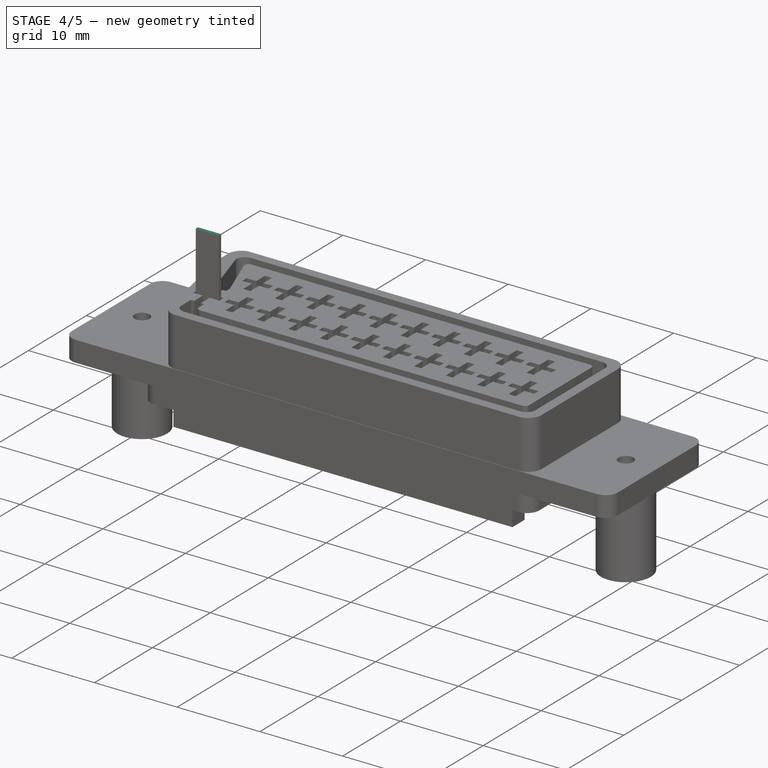
[diagram: stage 4 of 5 — iso view after this stage's code; geometry added in this stage tinted green]
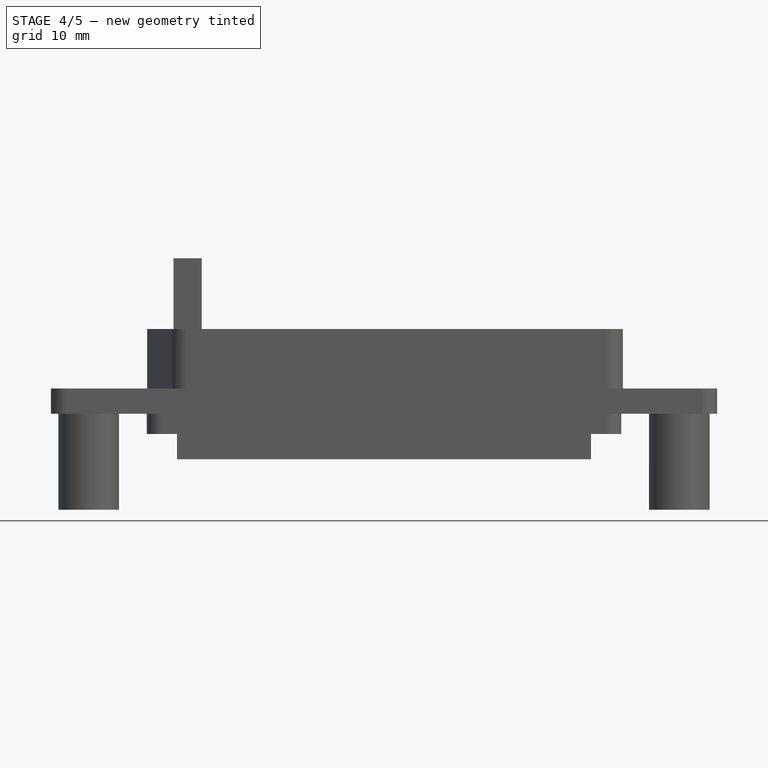
[diagram: stage 4 of 5 — front view after this stage's code; geometry added in this stage tinted green]
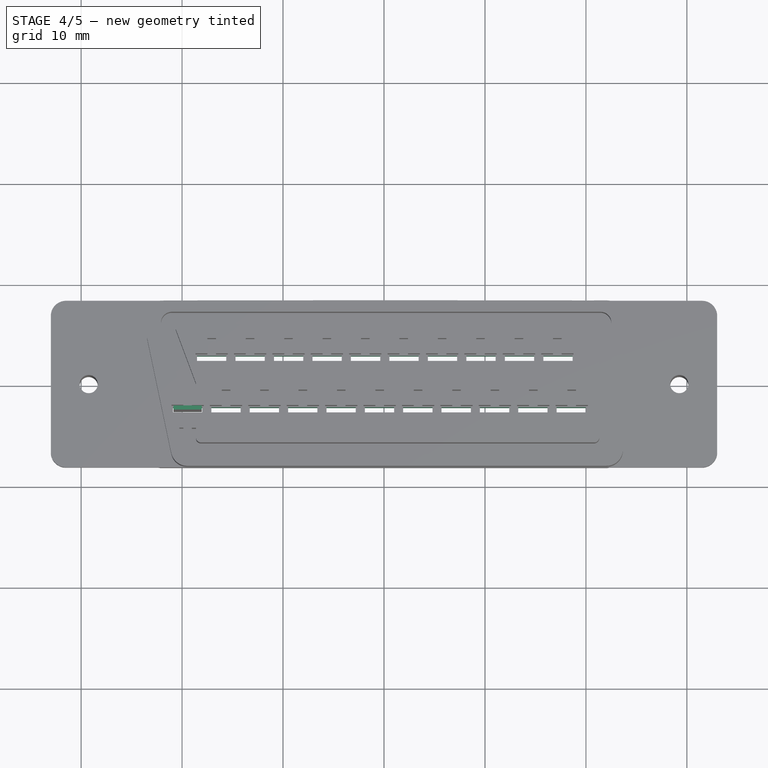
[diagram: stage 4 of 5 — top view after this stage's code; geometry added in this stage tinted green]
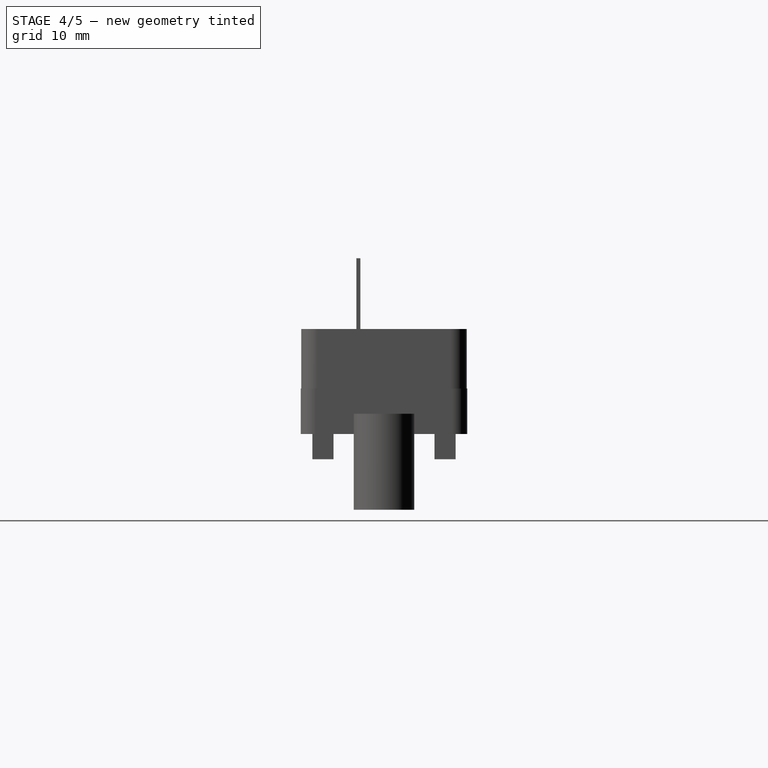
[diagram: stage 4 of 5 — right view after this stage's code; geometry added in this stage tinted green]
FEATURE [PartDesign::Fillet] Fillet001
  Base = -> Fillet [Edge91]
  BaseFeature = -> Fillet
  Placement = pos=(-20.5,-5,-7) rot=(0,0,1;0rad)
  Radius = 1
  SupportTransform = false
  UseAllEdges = false
FEATURE [PartDesign::AdditiveBox] Box008  label="base"
  AttacherType = Attacher::AttachEngine3D
  AttachmentOffset = pos=(-20.85,-2.74,-1.5) rot=(0,0,1;0rad)
  Height = 14.4
  Length = 2.8
  MapMode = 5
  Placement = pos=(-20.85,-2.74,-1.5) rot=(0,0,1;0rad)
  Support = -> [XY_Plane002]
  Width = 0.4
FEATURE [PartDesign::Body] Body002  label="Pin-bot"
  Group = -> [Box008,Box009,Box010,Box011,Box013,Box014,Fillet002]
  Origin = -> Origin002
  Tip = -> Fillet002
FEATURE [PartDesign::SubtractiveBox] Box015  label="pin-hole-base"
  AttacherType = Attacher::AttachEngine3D
  AttachmentOffset = pos=(-20.9,-2.8,-7) rot=(0,0,1;0rad)
  BaseFeature = -> Fillet001
  Height = 12.9
  Length = 2.9
  MapMode = 5
  Placement = pos=(-20.9,-2.8,-7) rot=(0,0,1;0rad)
  Support = -> [XY_Plane]
  Width = 0.5
FEATURE [PartDesign::LinearPattern] LinearPattern  label="pin-holes-bottom"
  BaseFeature = -> Box015
  Direction = -> X_Axis
  Length = 38
  Occurrences = 11
  Originals = -> [Box015]
  Placement = pos=(-20.9,-2.8,-7) rot=(0,0,1;0rad)
FEATURE [PartDesign::SubtractiveBox] Box016  label="pin-hole-top"
  AttacherType = Attacher::AttachEngine3D
  AttachmentOffset = pos=(-18.52,2.3,-8) rot=(0,0,1;0rad)
  BaseFeature = -> LinearPattern
  Height = 14.4
  Length = 2.9
  MapMode = 5
  Placement = pos=(-18.52,2.3,-8) rot=(0,0,1;0rad)
  Support = -> [XY_Plane]
  Width = 0.5
FEATURE [PartDesign::LinearPattern] LinearPattern001  label="pin-holes-top"
  BaseFeature = -> Box016
  Direction = -> X_Axis
  Length = 34.3
  Occurrences = 10
  Originals = -> [Box016]
  Placement = pos=(-18.52,2.3,-8) rot=(0,0,1;0rad)
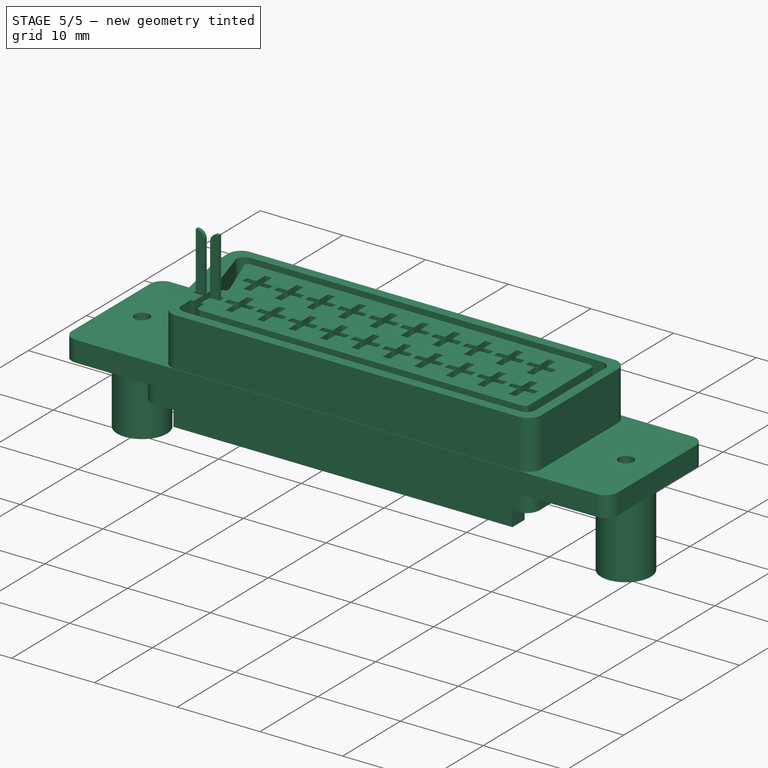
[diagram: stage 5 of 5 — iso view after this stage's code; geometry added in this stage tinted green]
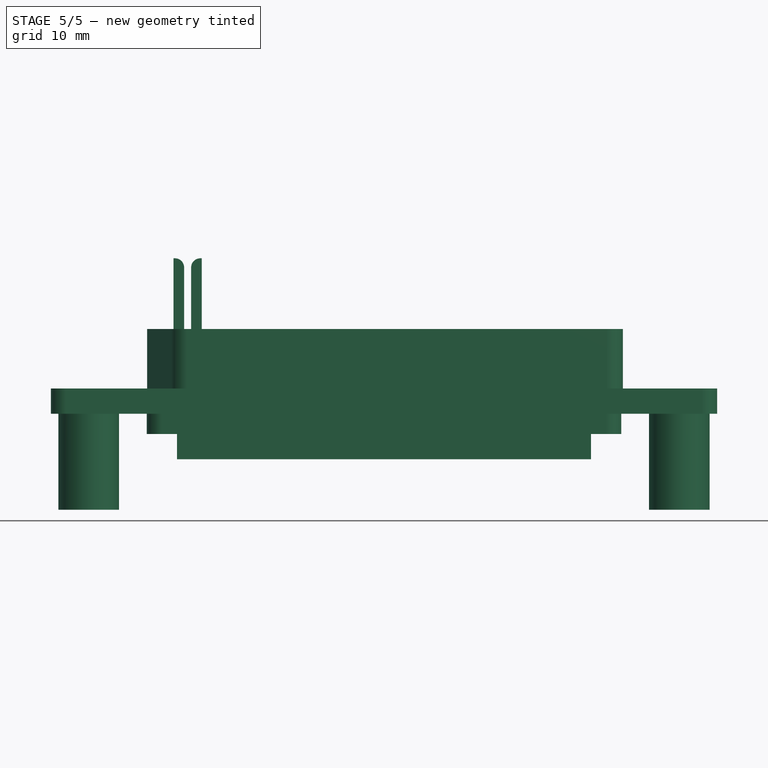
[diagram: stage 5 of 5 — front view after this stage's code; geometry added in this stage tinted green]
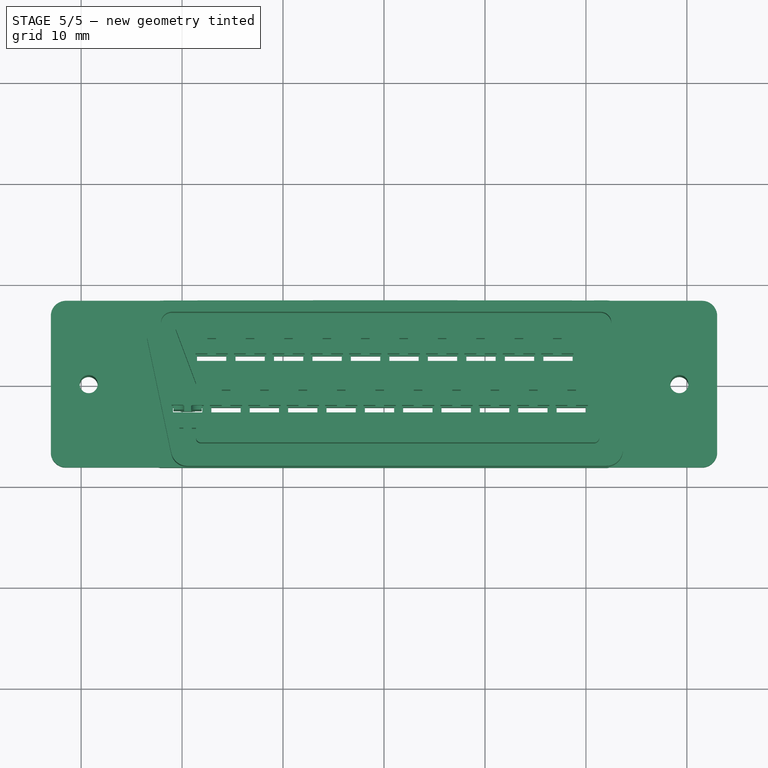
[diagram: stage 5 of 5 — top view after this stage's code; geometry added in this stage tinted green]
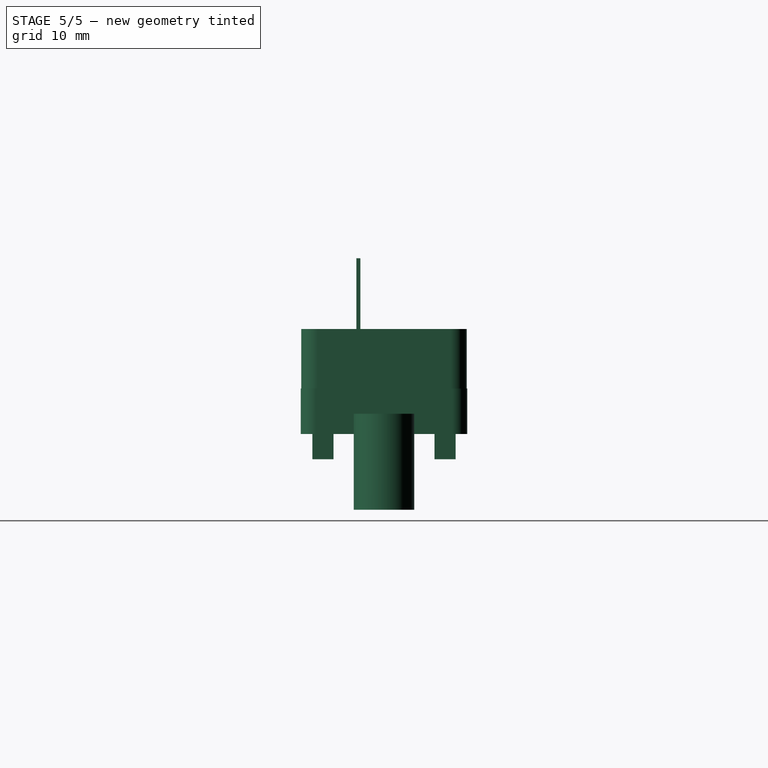
[diagram: stage 5 of 5 — right view after this stage's code; geometry added in this stage tinted green]
FEATURE [PartDesign::SubtractiveBox] Box009  label="mid-cut"
  AttacherType = Attacher::AttachEngine3D
  AttachmentOffset = pos=(-19.8,-2.74,2.35) rot=(0,0,1;0rad)
  BaseFeature = -> Box008
  Height = 10.55
  Length = 0.7
  MapMode = 5
  Placement = pos=(-19.8,-2.74,2.35) rot=(0,0,1;0rad)
  Support = -> [XY_Plane002]
  Width = 0.4
FEATURE [PartDesign::SubtractiveBox] Box010
  AttacherType = Attacher::AttachEngine3D
  AttachmentOffset = pos=(-20.85,-2.74,-1.5) rot=(0,0,1;0rad)
  BaseFeature = -> Box009
  Height = 3.8
  Length = 0.7
  MapMode = 5
  Placement = pos=(-20.85,-2.74,-1.5) rot=(0,0,1;0rad)
  Support = -> [XY_Plane002]
  Width = 0.4
FEATURE [PartDesign::SubtractiveBox] Box011
  AttacherType = Attacher::AttachEngine3D
  AttachmentOffset = pos=(-18.75,-2.74,-1.5) rot=(0,0,1;0rad)
  BaseFeature = -> Box010
  Height = 3.8
  Length = 0.7
  MapMode = 5
  Placement = pos=(-18.75,-2.74,-1.5) rot=(0,0,1;0rad)
  Support = -> [XY_Plane002]
  Width = 0.4
FEATURE [PartDesign::SubtractiveBox] Box013
  AttacherType = Attacher::AttachEngine3D
  AttachmentOffset = pos=(-20.15,-2.74,-1.5) rot=(0,0,1;0rad)
  BaseFeature = -> Box011
  Height = 1.5
  Length = 0.2
  MapMode = 5
  Placement = pos=(-20.15,-2.74,-1.5) rot=(0,0,1;0rad)
  Support = -> [XY_Plane002]
  Width = 0.4
FEATURE [PartDesign::SubtractiveBox] Box014
  AttacherType = Attacher::AttachEngine3D
  AttachmentOffset = pos=(-18.95,-2.74,-1.5) rot=(0,0,1;0rad)
  BaseFeature = -> Box013
  Height = 1.5
  Length = 0.2
  MapMode = 5
  Placement = pos=(-18.95,-2.74,-1.5) rot=(0,0,1;0rad)
  Support = -> [XY_Plane002]
  Width = 0.4
FEATURE [PartDesign::Fillet] Fillet002
  Base = -> Box014 [Edge21,Edge37]
  BaseFeature = -> Box014
  Placement = pos=(-18.95,-2.74,-1.5) rot=(0,0,1;0rad)
  Radius = 0.9
  SupportTransform = false
  UseAllEdges = false
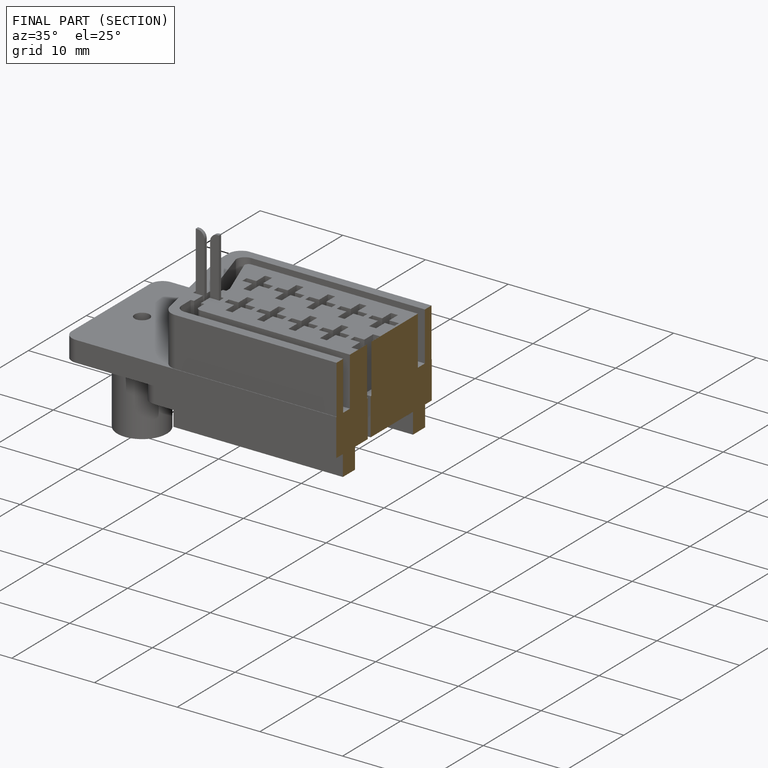
[diagram: finished part — half-section view (interior)]
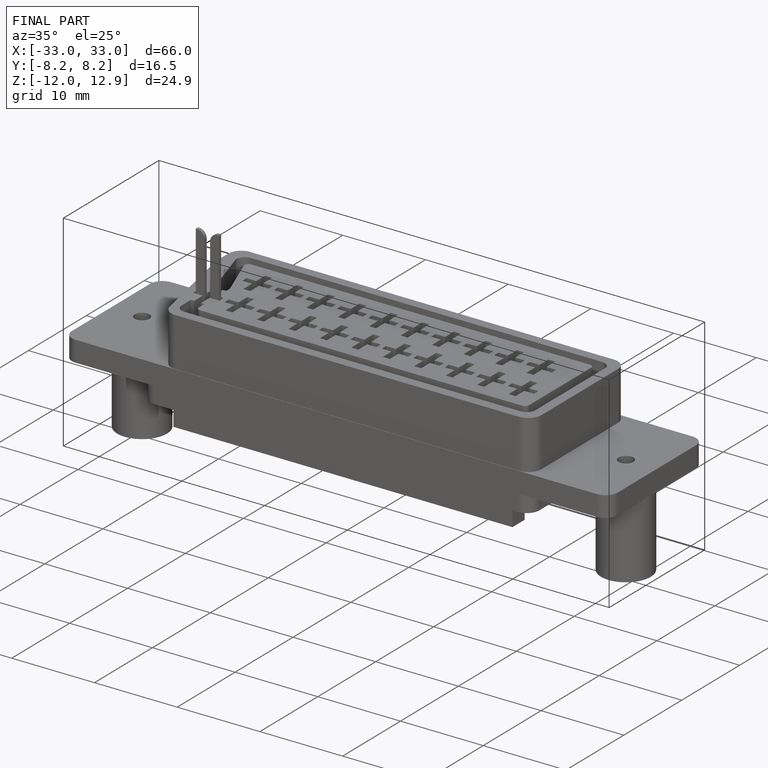
[diagram: finished part — iso view with bounding-box wireframe]
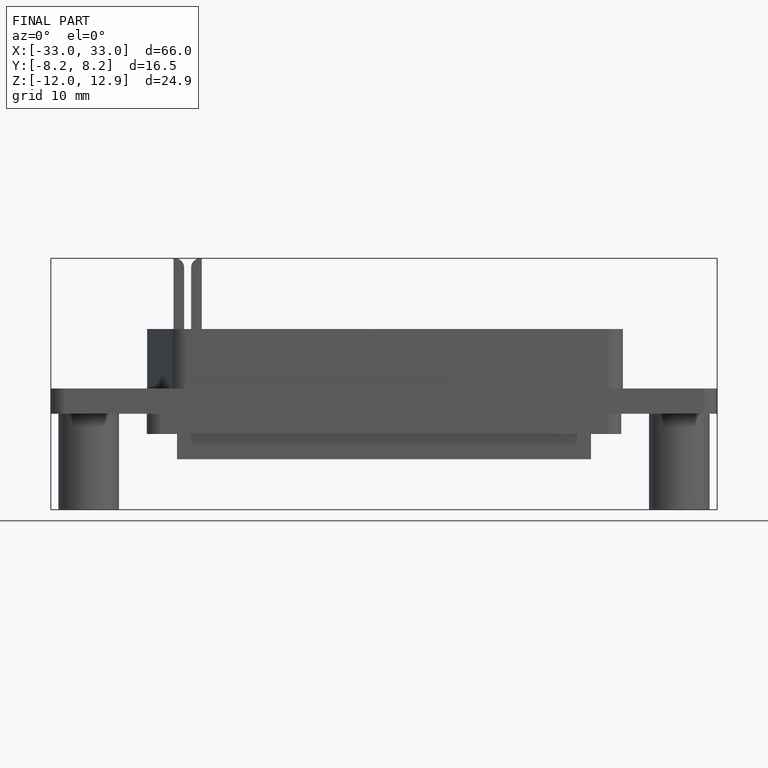
[diagram: finished part — front view with bounding-box wireframe]
